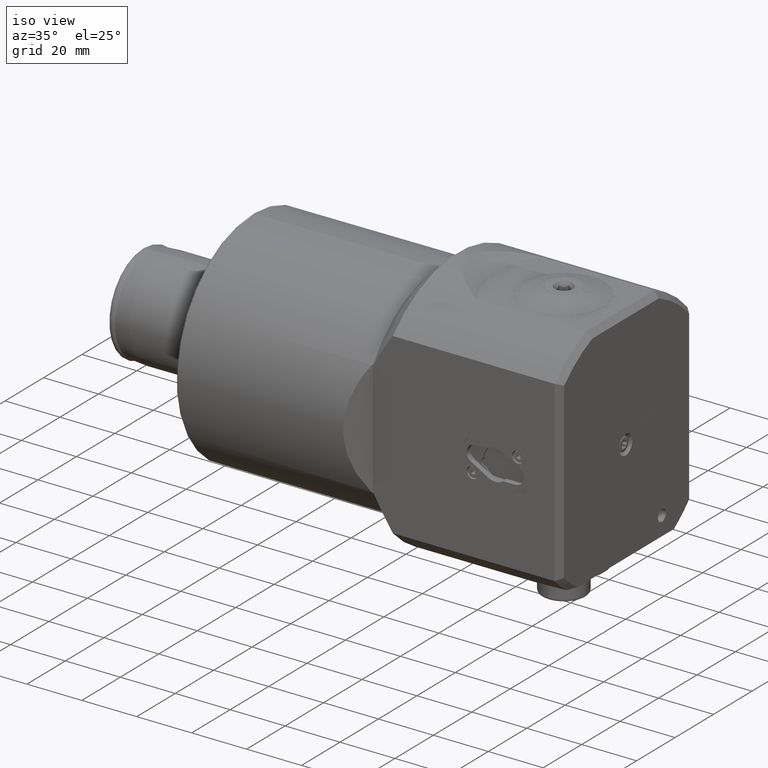
[diagram: clean part render]
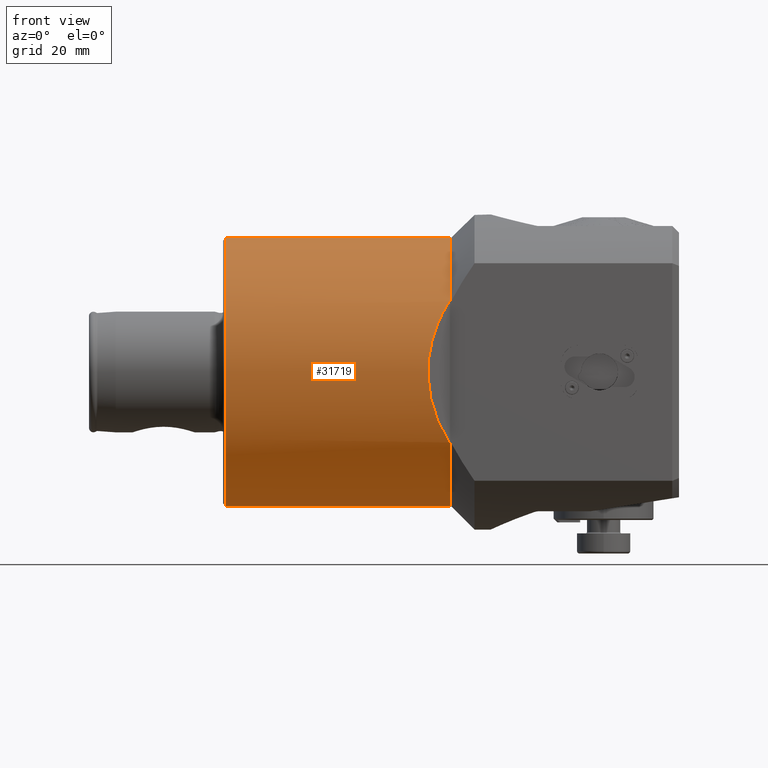
[diagram: tour spotlight — one face highlighted and labeled with its STEP entity id]
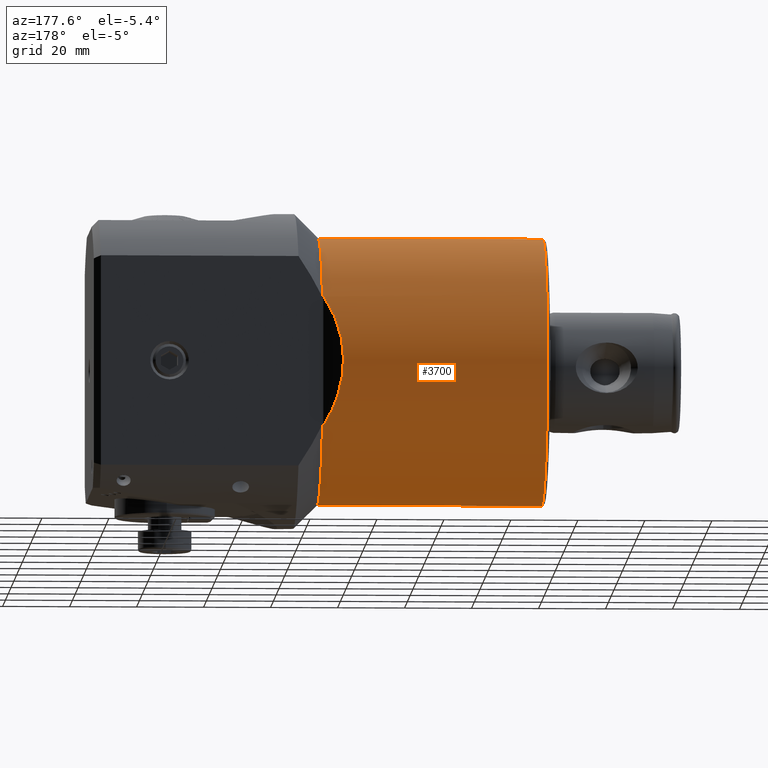
[diagram: tour spotlight — one face highlighted and labeled with its STEP entity id]
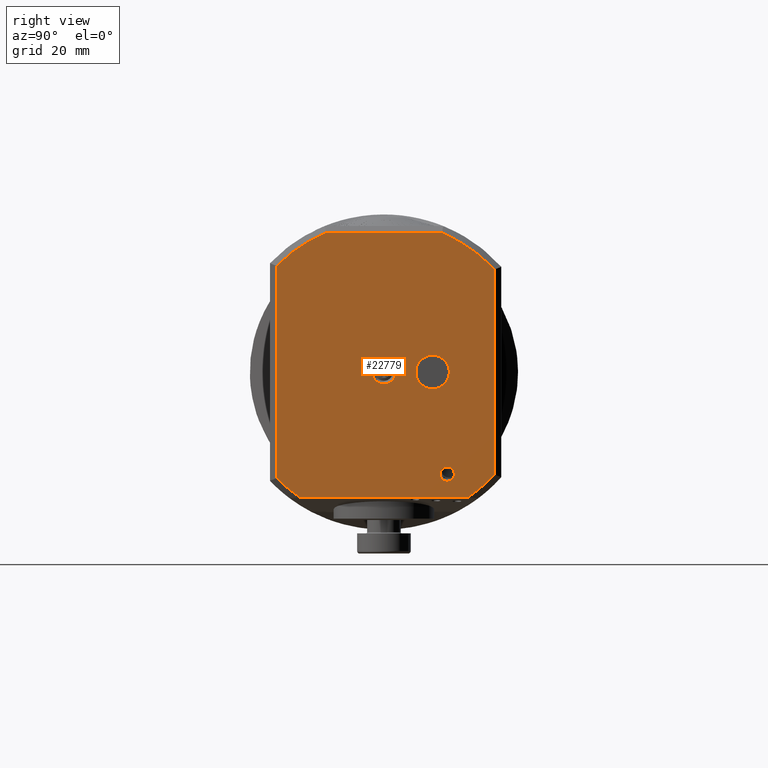
[diagram: tour spotlight — one face highlighted and labeled with its STEP entity id]
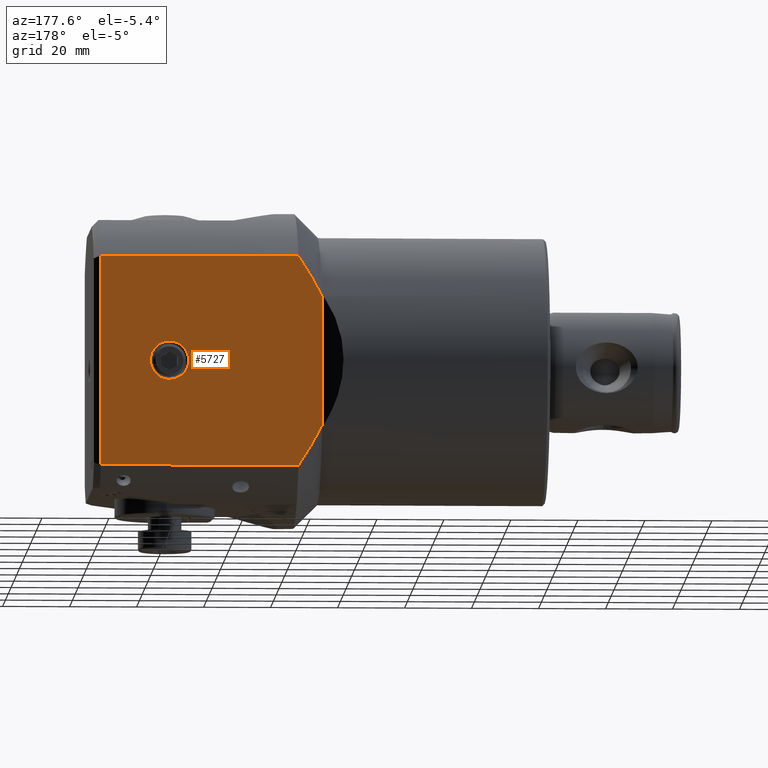
[diagram: tour spotlight — one face highlighted and labeled with its STEP entity id]
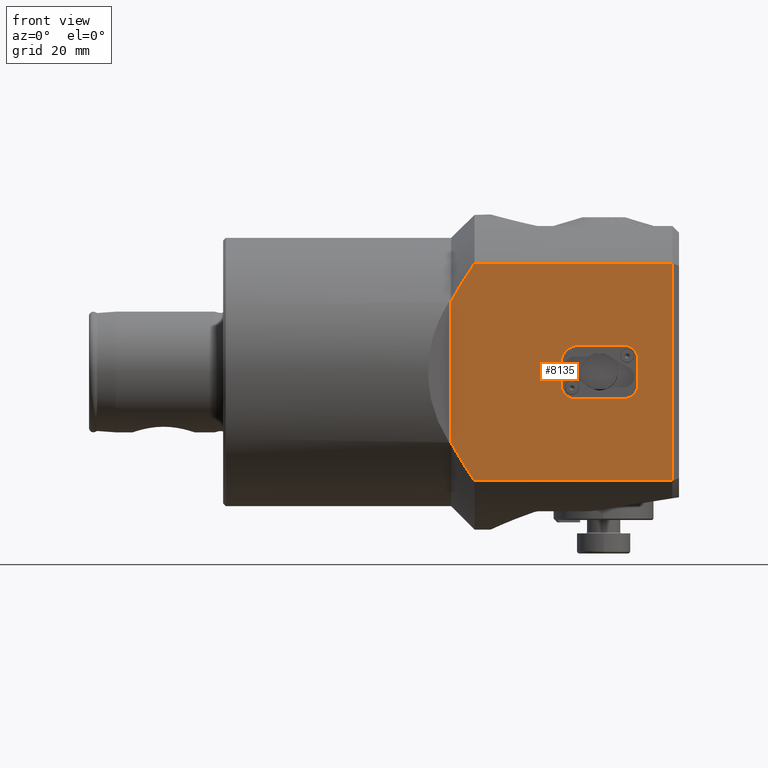
[diagram: tour spotlight — one face highlighted and labeled with its STEP entity id]
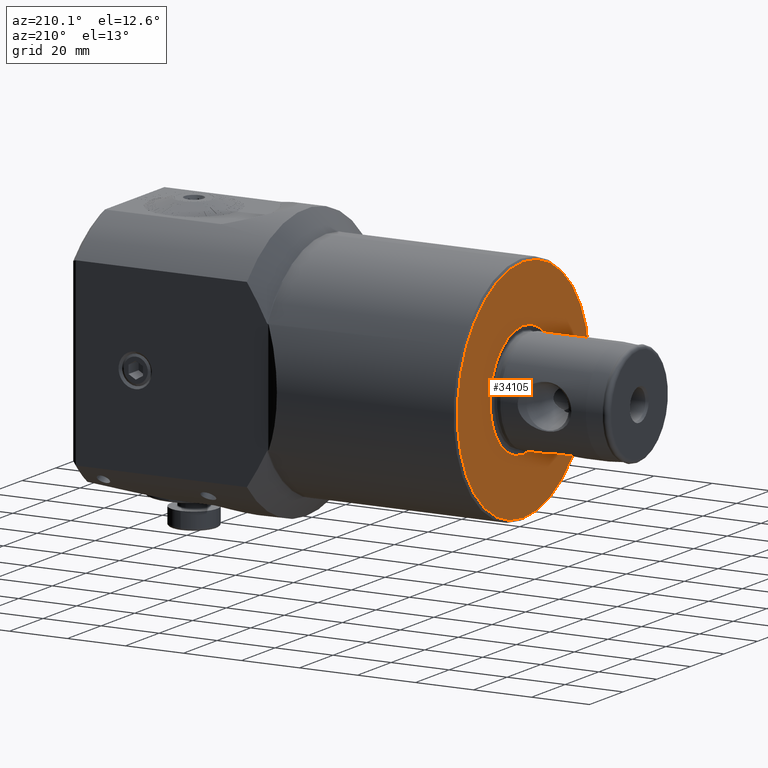
[diagram: tour spotlight — one face highlighted and labeled with its STEP entity id]
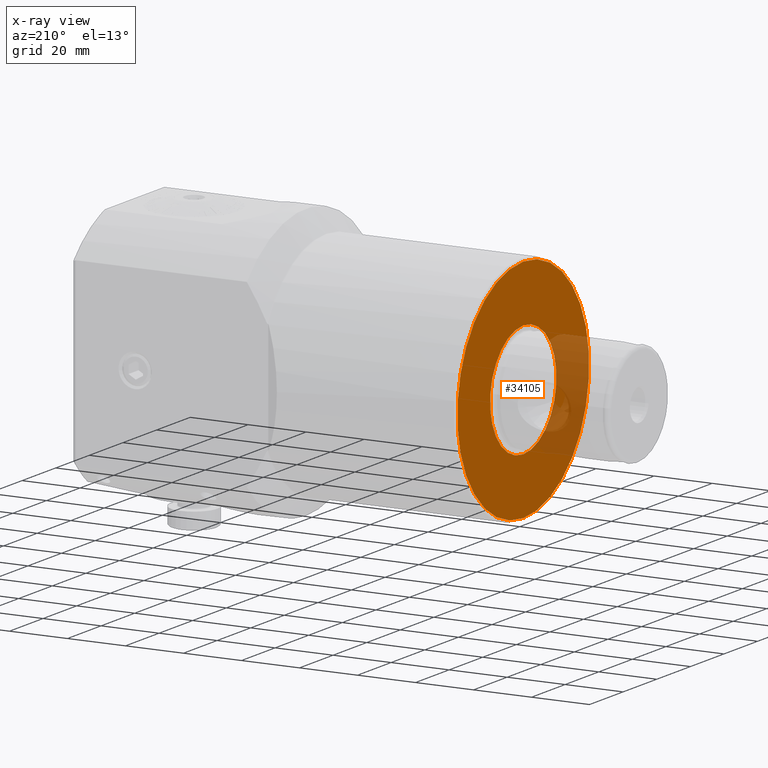
[diagram: x-ray of the same camera — body ghosted, this tour face saturated]
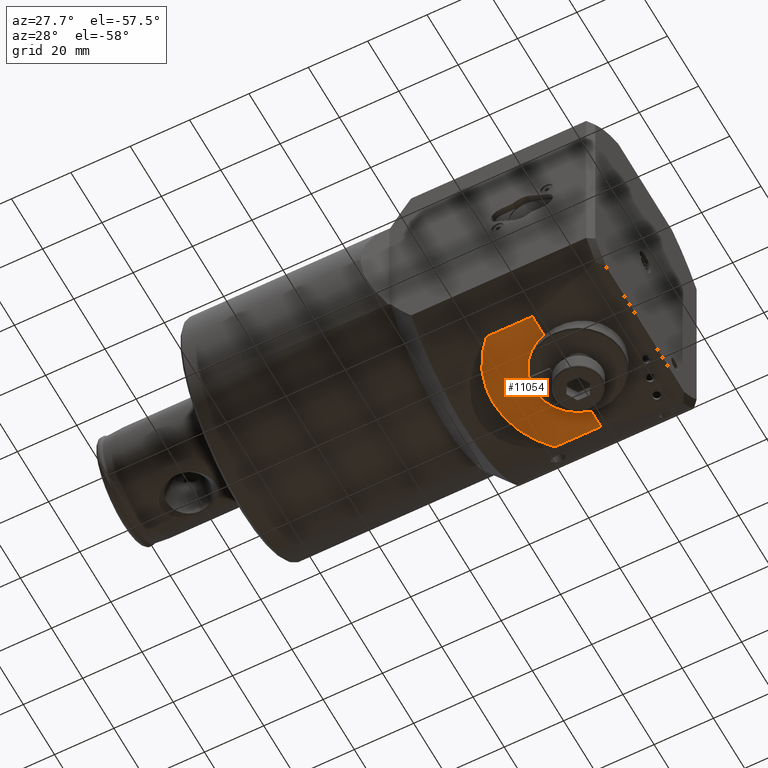
[diagram: tour spotlight — one face highlighted and labeled with its STEP entity id]
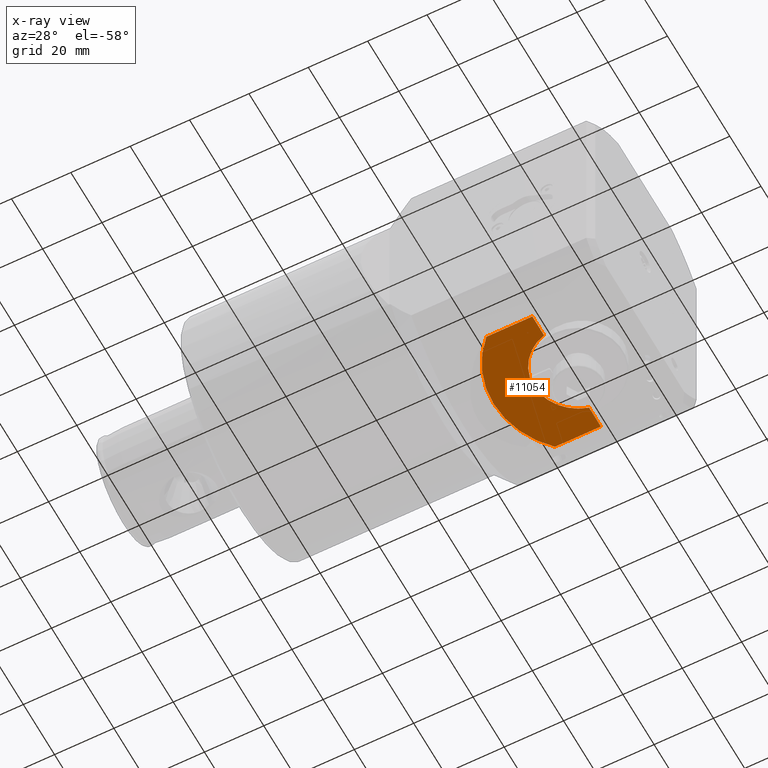
[diagram: x-ray of the same camera — body ghosted, this tour face saturated]
A machine part: a face-by-face anatomy tour. The part has 1006 B-rep faces; the first image is the clean iso view, then the 7 largest visible faces are spotlighted one at a time (largest first), each with its STEP entity span.

Face 1 — front view, entity #31719. In plain terms, the highlighted cylindrical surface (partial cylindrical patch) has radius 40 mm, axis along (-1, -0, -0).
Definition (entity closure, byte-faithful):
#459 = CARTESIAN_POINT ( 'NONE',  ( -135.2000000000000200, -2.979588232294673000E-014, -40.00000000000000000 ) ) ;
#784 = CYLINDRICAL_SURFACE ( 'NONE', #28093, 40.00000000000000700 ) ;
#2121 = EDGE_CURVE ( 'NONE', #4001, #17444, #14070, .T. ) ;
#2385 = ORIENTED_EDGE ( 'NONE', *, *, #2121, .F. ) ;
#2719 = CARTESIAN_POINT ( 'NONE',  ( -68.65494648898815900, -34.16205938127261300, 20.80780550597493300 ) ) ;
#3803 = VERTEX_POINT ( 'NONE', #4761 ) ;
#4001 = VERTEX_POINT ( 'NONE', #459 ) ;
#4761 = CARTESIAN_POINT ( 'NONE',  ( -68.16568542494921700, -34.00000000000001400, 21.07130750570552300 ) ) ;
#4954 = LINE ( 'NONE', #21332, #19301 ) ;
#5513 = AXIS2_PLACEMENT_3D ( 'NONE', #30725, #25513, #22582 ) ;
#6344 = CARTESIAN_POINT ( 'NONE',  ( -176.0000000000000000, -2.979588232294673000E-014, -40.00000000000000700 ) ) ;
#7026 = CARTESIAN_POINT ( 'NONE',  ( -68.16568542494921700, -3.469446951953614200E-014, 40.00000000000000700 ) ) ;
#7616 = EDGE_CURVE ( 'NONE', #23472, #17444, #4954, .T. ) ;
#8084 = EDGE_CURVE ( 'NONE', #3803, #23472, #13259, .T. ) ;
#8108 = CARTESIAN_POINT ( 'NONE',  ( -135.2000000000000200, -3.469446951953614200E-014, 0.0000000000000000000 ) ) ;
#8153 = CARTESIAN_POINT ( 'NONE',  ( -68.40128003120634000, -34.02888103240311300, 21.02478148519661300 ) ) ;
#8448 = EDGE_CURVE ( 'NONE', #32156, #23166, #8927, .T. ) ;
#8737 = CARTESIAN_POINT ( 'NONE',  ( -68.16568542494921700, -3.469446951953614200E-014, 0.0000000000000000000 ) ) ;
#8927 = CIRCLE ( 'NONE', #11398, 40.00000000000000700 ) ;
#9038 =( BOUNDED_CURVE ( )  B_SPLINE_CURVE ( 3, ( #31068, #14645, #14752, #20054 ),
 .UNSPECIFIED., .F., .F. ) 
 B_SPLINE_CURVE_WITH_KNOTS ( ( 4, 4 ),
 ( 5.738738475479662400, 6.827632138879510000 ),
 .UNSPECIFIED. ) 
 CURVE ( )  GEOMETRIC_REPRESENTATION_ITEM ( )  RATIONAL_B_SPLINE_CURVE ( ( 1.000000000000000000, 0.9036092882582350500, 0.9036092882582350500, 1.000000000000000000 ) ) 
 REPRESENTATION_ITEM ( '' )  );
#10185 = CARTESIAN_POINT ( 'NONE',  ( -68.22540814200247900, -34.00000000000000700, -21.07130750570556900 ) ) ;
#10303 = CARTESIAN_POINT ( 'NONE',  ( -68.58373013226953700, -34.11068150384143400, -20.89180344038134500 ) ) ;
#10749 = CARTESIAN_POINT ( 'NONE',  ( -68.71303778911591600, -34.21655729549414800, 20.71779927608551500 ) ) ;
#10859 = CARTESIAN_POINT ( 'NONE',  ( -68.16568542494921700, -34.00000000000001400, 21.07130750570552300 ) ) ;
#11022 = CARTESIAN_POINT ( 'NONE',  ( -68.39624806605510800, -34.03185176484318900, -21.01983878453747300 ) ) ;
#11398 = AXIS2_PLACEMENT_3D ( 'NONE', #8737, #33108, #30372 ) ;
#11791 = EDGE_CURVE ( 'NONE', #32156, #4001, #21503, .T. ) ;
#12328 = ORIENTED_EDGE ( 'NONE', *, *, #32429, .T. ) ;
#13026 = CARTESIAN_POINT ( 'NONE',  ( -68.71303778911591600, -34.21655729549414800, -20.71779927608551500 ) ) ;
#13259 = CIRCLE ( 'NONE', #5513, 40.00000000000000700 ) ;
#13388 = ORIENTED_EDGE ( 'NONE', *, *, #32986, .T. ) ;
#14070 = CIRCLE ( 'NONE', #24403, 40.00000000000000000 ) ;
#14199 = ORIENTED_EDGE ( 'NONE', *, *, #8448, .T. ) ;
#14645 = CARTESIAN_POINT ( 'NONE',  ( -77.15195100762399200, -42.13345995872987300, -7.642609678504023800 ) ) ;
#14752 = CARTESIAN_POINT ( 'NONE',  ( -77.15195100762400700, -42.13345995872987300, 7.642609678504011400 ) ) ;
#15951 = B_SPLINE_CURVE_WITH_KNOTS ( 'NONE', 3,
 ( #31941, #10185, #23650, #11022, #29107, #10303, #29230, #13026 ),
 .UNSPECIFIED., .F., .F.,
 ( 4, 2, 2, 4 ),
 ( 0.001900335878254289600, 0.002078611656613045400, 0.002256887434971801600, 0.002613438991689344800 ),
 .UNSPECIFIED. ) ;
#16553 = VERTEX_POINT ( 'NONE', #28561 ) ;
#17444 = VERTEX_POINT ( 'NONE', #25192 ) ;
#19301 = VECTOR ( 'NONE', #29516, 1000.000000000000000 ) ;
#19787 = CARTESIAN_POINT ( 'NONE',  ( -176.0000000000000000, -3.469446951953614200E-014, 0.0000000000000000000 ) ) ;
#20015 = DIRECTION ( 'NONE',  ( -1.000000000000000000, -0.0000000000000000000, -0.0000000000000000000 ) ) ;
#20054 = CARTESIAN_POINT ( 'NONE',  ( -68.71303778911591600, -34.21655729549414800, 20.71779927608551500 ) ) ;
#21332 = CARTESIAN_POINT ( 'NONE',  ( -176.0000000000000000, -3.469446951953614200E-014, 40.00000000000000700 ) ) ;
#21503 = LINE ( 'NONE', #6344, #22366 ) ;
#22096 = VERTEX_POINT ( 'NONE', #28706 ) ;
#22366 = VECTOR ( 'NONE', #20015, 1000.000000000000000 ) ;
#22582 = DIRECTION ( 'NONE',  ( 0.0000000000000000000, 0.0000000000000000000, 1.000000000000000000 ) ) ;
#23166 = VERTEX_POINT ( 'NONE', #24890 ) ;
#23472 = VERTEX_POINT ( 'NONE', #7026 ) ;
#23650 = CARTESIAN_POINT ( 'NONE',  ( -68.28567292553057700, -34.00702216780511800, -21.05998576330518500 ) ) ;
#24059 = ORIENTED_EDGE ( 'NONE', *, *, #8084, .T. ) ;
#24346 = CARTESIAN_POINT ( 'NONE',  ( -68.58493764483101500, -34.11126430555015100, 20.89085513555181000 ) ) ;
#24398 = EDGE_CURVE ( 'NONE', #22096, #16553, #9038, .T. ) ;
#24403 = AXIS2_PLACEMENT_3D ( 'NONE', #8108, #26771, #29638 ) ;
#24890 = CARTESIAN_POINT ( 'NONE',  ( -68.16568542494921700, -34.00000000000001400, -21.07130750570552300 ) ) ;
#25192 = CARTESIAN_POINT ( 'NONE',  ( -135.2000000000000200, -3.469446951953614200E-014, 40.00000000000000000 ) ) ;
#25513 = DIRECTION ( 'NONE',  ( -1.000000000000000000, -0.0000000000000000000, -0.0000000000000000000 ) ) ;
#25840 = DIRECTION ( 'NONE',  ( 0.0000000000000000000, 0.0000000000000000000, 1.000000000000000000 ) ) ;
#26771 = DIRECTION ( 'NONE',  ( -1.000000000000000000, -0.0000000000000000000, -0.0000000000000000000 ) ) ;
#26827 = EDGE_LOOP ( 'NONE', ( #28432, #14199, #12328, #27596, #13388, #24059, #33523, #2385 ) ) ;
#27047 = CARTESIAN_POINT ( 'NONE',  ( -68.28735252478868700, -34.00000000000001400, 21.07130750570552300 ) ) ;
#27596 = ORIENTED_EDGE ( 'NONE', *, *, #24398, .T. ) ;
#27936 = CARTESIAN_POINT ( 'NONE',  ( -68.16568542494921700, -2.979588232294673000E-014, -40.00000000000000700 ) ) ;
#28093 = AXIS2_PLACEMENT_3D ( 'NONE', #19787, #30808, #25840 ) ;
#28432 = ORIENTED_EDGE ( 'NONE', *, *, #11791, .F. ) ;
#28561 = CARTESIAN_POINT ( 'NONE',  ( -68.71303778911591600, -34.21655729549414800, 20.71779927608551500 ) ) ;
#28706 = CARTESIAN_POINT ( 'NONE',  ( -68.71303778911591600, -34.21655729549414800, -20.71779927608551500 ) ) ;
#29107 = CARTESIAN_POINT ( 'NONE',  ( -68.44738484026706300, -34.04958292861517300, -20.99112701355906900 ) ) ;
#29230 = CARTESIAN_POINT ( 'NONE',  ( -68.65533799600118000, -34.16242667061979400, -20.80719890790799900 ) ) ;
#29516 = DIRECTION ( 'NONE',  ( -1.000000000000000000, -0.0000000000000000000, -0.0000000000000000000 ) ) ;
#29638 = DIRECTION ( 'NONE',  ( 0.0000000000000000000, 0.0000000000000000000, 1.000000000000000000 ) ) ;
#30372 = DIRECTION ( 'NONE',  ( 0.0000000000000000000, 0.0000000000000000000, 1.000000000000000000 ) ) ;
#30400 = FACE_OUTER_BOUND ( 'NONE', #26827, .T. ) ;
#30725 = CARTESIAN_POINT ( 'NONE',  ( -68.16568542494921700, -3.469446951953614200E-014, 0.0000000000000000000 ) ) ;
#30808 = DIRECTION ( 'NONE',  ( -1.000000000000000000, -0.0000000000000000000, -0.0000000000000000000 ) ) ;
#31068 = CARTESIAN_POINT ( 'NONE',  ( -68.71303778911591600, -34.21655729549414800, -20.71779927608551500 ) ) ;
#31226 = B_SPLINE_CURVE_WITH_KNOTS ( 'NONE', 3,
 ( #10749, #2719, #24346, #8153, #27047, #10859 ),
 .UNSPECIFIED., .F., .F.,
 ( 4, 2, 4 ),
 ( 0.005152170253584360300, 0.005506011472979365600, 0.005859852692374371000 ),
 .UNSPECIFIED. ) ;
#31719 = ADVANCED_FACE ( 'NONE', ( #30400 ), #784, .T. ) ;
#31941 = CARTESIAN_POINT ( 'NONE',  ( -68.16568542494921700, -34.00000000000001400, -21.07130750570552300 ) ) ;
#32156 = VERTEX_POINT ( 'NONE', #27936 ) ;
#32429 = EDGE_CURVE ( 'NONE', #23166, #22096, #15951, .T. ) ;
#32986 = EDGE_CURVE ( 'NONE', #16553, #3803, #31226, .T. ) ;
#33108 = DIRECTION ( 'NONE',  ( -1.000000000000000000, -0.0000000000000000000, -0.0000000000000000000 ) ) ;
#33523 = ORIENTED_EDGE ( 'NONE', *, *, #7616, .T. ) ;

Face 2 — auxiliary view, entity #3700. In plain terms, the highlighted cylindrical surface (partial cylindrical patch) has radius 40 mm, axis along (-1, -0, -0).
Definition (entity closure, byte-faithful):
#260 = CARTESIAN_POINT ( 'NONE',  ( -68.16568542494923100, 35.00000000000001400, -19.36491673103701000 ) ) ;
#380 = CARTESIAN_POINT ( 'NONE',  ( -68.28132486105202800, 35.00655953996988500, -19.35307064945804000 ) ) ;
#459 = CARTESIAN_POINT ( 'NONE',  ( -135.2000000000000200, -2.979588232294673000E-014, -40.00000000000000000 ) ) ;
#498 = CARTESIAN_POINT ( 'NONE',  ( -68.22327115433958500, 35.00000000000002100, -19.36491673103704200 ) ) ;
#618 = CARTESIAN_POINT ( 'NONE',  ( -68.38697983238405700, 35.02931911400825300, -19.31184498688169500 ) ) ;
#1489 = CARTESIAN_POINT ( 'NONE',  ( -76.25849145588175300, 41.74114084938683800, -6.887738850265104200 ) ) ;
#1608 = CARTESIAN_POINT ( 'NONE',  ( -68.68899097443299700, 35.19489562728447400, 19.00840134741869400 ) ) ;
#1749 = CIRCLE ( 'NONE', #34597, 40.00000000000000700 ) ;
#1804 = DIRECTION ( 'NONE',  ( 0.0000000000000000000, 0.0000000000000000000, 1.000000000000000000 ) ) ;
#2257 = AXIS2_PLACEMENT_3D ( 'NONE', #10417, #7238, #1804 ) ;
#2667 = CARTESIAN_POINT ( 'NONE',  ( -68.38812159457512500, 35.02960469964811800, 19.31132738409710500 ) ) ;
#2781 = CARTESIAN_POINT ( 'NONE',  ( -68.68899097443299700, 35.19489562728447400, -19.00840134741871200 ) ) ;
#3238 = DIRECTION ( 'NONE',  ( 0.0000000000000000000, 0.0000000000000000000, 1.000000000000000000 ) ) ;
#3382 = EDGE_CURVE ( 'NONE', #10861, #18166, #33363, .T. ) ;
#3700 = ADVANCED_FACE ( 'NONE', ( #26680 ), #33038, .T. ) ;
#4001 = VERTEX_POINT ( 'NONE', #459 ) ;
#4346 = CARTESIAN_POINT ( 'NONE',  ( -76.25849145588175300, 41.74114084938684500, 6.887738850265075800 ) ) ;
#4430 = DIRECTION ( 'NONE',  ( -1.000000000000000000, -0.0000000000000000000, -0.0000000000000000000 ) ) ;
#4686 = ORIENTED_EDGE ( 'NONE', *, *, #15251, .T. ) ;
#4954 = LINE ( 'NONE', #21332, #19301 ) ;
#4993 = CIRCLE ( 'NONE', #21356, 40.00000000000000000 ) ;
#5464 = CARTESIAN_POINT ( 'NONE',  ( -68.63326604857356000, 35.14670367187691400, 19.09763088385598800 ) ) ;
#5728 = CARTESIAN_POINT ( 'NONE',  ( -68.43563771163495300, 35.04543617213172300, 19.28260587969533500 ) ) ;
#6344 = CARTESIAN_POINT ( 'NONE',  ( -176.0000000000000000, -2.979588232294673000E-014, -40.00000000000000700 ) ) ;
#7026 = CARTESIAN_POINT ( 'NONE',  ( -68.16568542494921700, -3.469446951953614200E-014, 40.00000000000000700 ) ) ;
#7238 = DIRECTION ( 'NONE',  ( -1.000000000000000000, -0.0000000000000000000, -0.0000000000000000000 ) ) ;
#7616 = EDGE_CURVE ( 'NONE', #23472, #17444, #4954, .T. ) ;
#8319 = CARTESIAN_POINT ( 'NONE',  ( -68.56485815072696300, 35.10040145081542600, -19.18248205635142500 ) ) ;
#10417 = CARTESIAN_POINT ( 'NONE',  ( -176.0000000000000000, -3.469446951953614200E-014, 0.0000000000000000000 ) ) ;
#10647 = CARTESIAN_POINT ( 'NONE',  ( -68.16568542494923100, 35.00000000000001400, 19.36491673103702400 ) ) ;
#10861 = VERTEX_POINT ( 'NONE', #24447 ) ;
#10925 = CARTESIAN_POINT ( 'NONE',  ( -68.63319407104073400, 35.14664142435814400, -19.09774613788958700 ) ) ;
#11128 = CARTESIAN_POINT ( 'NONE',  ( -68.68899097443299700, 35.19489562728447400, 19.00840134741869400 ) ) ;
#11791 = EDGE_CURVE ( 'NONE', #32156, #4001, #21503, .T. ) ;
#12255 = EDGE_CURVE ( 'NONE', #21789, #22527, #16504, .T. ) ;
#12462 = ORIENTED_EDGE ( 'NONE', *, *, #7616, .F. ) ;
#12511 = DIRECTION ( 'NONE',  ( -1.000000000000000000, -0.0000000000000000000, -0.0000000000000000000 ) ) ;
#15251 = EDGE_CURVE ( 'NONE', #23472, #21789, #31922, .T. ) ;
#16475 = EDGE_CURVE ( 'NONE', #22527, #10861, #32244, .T. ) ;
#16504 = B_SPLINE_CURVE_WITH_KNOTS ( 'NONE', 3,
 ( #32459, #24528, #32695, #2667, #5728, #34570, #5464, #11128 ),
 .UNSPECIFIED., .F., .F.,
 ( 4, 2, 2, 4 ),
 ( 0.002024114931907352100, 0.002193500458901803400, 0.002362885985896254700, 0.002701657039885163400 ),
 .UNSPECIFIED. ) ;
#17091 = ORIENTED_EDGE ( 'NONE', *, *, #12255, .T. ) ;
#17444 = VERTEX_POINT ( 'NONE', #25192 ) ;
#18057 = DIRECTION ( 'NONE',  ( 0.0000000000000000000, 0.0000000000000000000, 1.000000000000000000 ) ) ;
#18166 = VERTEX_POINT ( 'NONE', #27986 ) ;
#19173 = DIRECTION ( 'NONE',  ( -1.000000000000000000, -0.0000000000000000000, -0.0000000000000000000 ) ) ;
#19301 = VECTOR ( 'NONE', #29516, 1000.000000000000000 ) ;
#20015 = DIRECTION ( 'NONE',  ( -1.000000000000000000, -0.0000000000000000000, -0.0000000000000000000 ) ) ;
#21332 = CARTESIAN_POINT ( 'NONE',  ( -176.0000000000000000, -3.469446951953614200E-014, 40.00000000000000700 ) ) ;
#21356 = AXIS2_PLACEMENT_3D ( 'NONE', #27452, #19173, #3238 ) ;
#21503 = LINE ( 'NONE', #6344, #22366 ) ;
#21665 = ORIENTED_EDGE ( 'NONE', *, *, #11791, .T. ) ;
#21723 = ORIENTED_EDGE ( 'NONE', *, *, #3382, .T. ) ;
#21789 = VERTEX_POINT ( 'NONE', #10647 ) ;
#22366 = VECTOR ( 'NONE', #20015, 1000.000000000000000 ) ;
#22527 = VERTEX_POINT ( 'NONE', #24886 ) ;
#23227 = CARTESIAN_POINT ( 'NONE',  ( -68.68899097443299700, 35.19489562728447400, -19.00840134741871200 ) ) ;
#23472 = VERTEX_POINT ( 'NONE', #7026 ) ;
#23730 = CARTESIAN_POINT ( 'NONE',  ( -68.16568542494921700, -3.469446951953614200E-014, 0.0000000000000000000 ) ) ;
#23997 = ORIENTED_EDGE ( 'NONE', *, *, #16475, .T. ) ;
#24447 = CARTESIAN_POINT ( 'NONE',  ( -68.68899097443299700, 35.19489562728447400, -19.00840134741871200 ) ) ;
#24528 = CARTESIAN_POINT ( 'NONE',  ( -68.22357377090057200, 35.00000000000001400, 19.36491673103702700 ) ) ;
#24551 = EDGE_LOOP ( 'NONE', ( #29383, #21665, #25143, #12462, #4686, #17091, #23997, #21723 ) ) ;
#24858 = CARTESIAN_POINT ( 'NONE',  ( -68.43552851491730800, 35.04542796529889900, -19.28261986068558200 ) ) ;
#24886 = CARTESIAN_POINT ( 'NONE',  ( -68.68899097443299700, 35.19489562728447400, 19.00840134741869400 ) ) ;
#25143 = ORIENTED_EDGE ( 'NONE', *, *, #25313, .F. ) ;
#25192 = CARTESIAN_POINT ( 'NONE',  ( -135.2000000000000200, -3.469446951953614200E-014, 40.00000000000000000 ) ) ;
#25313 = EDGE_CURVE ( 'NONE', #17444, #4001, #4993, .T. ) ;
#26680 = FACE_OUTER_BOUND ( 'NONE', #24551, .T. ) ;
#27452 = CARTESIAN_POINT ( 'NONE',  ( -135.2000000000000200, -3.469446951953614200E-014, 0.0000000000000000000 ) ) ;
#27936 = CARTESIAN_POINT ( 'NONE',  ( -68.16568542494921700, -2.979588232294673000E-014, -40.00000000000000700 ) ) ;
#27986 = CARTESIAN_POINT ( 'NONE',  ( -68.16568542494923100, 35.00000000000001400, -19.36491673103701000 ) ) ;
#28621 = EDGE_CURVE ( 'NONE', #18166, #32156, #1749, .T. ) ;
#29383 = ORIENTED_EDGE ( 'NONE', *, *, #28621, .T. ) ;
#29516 = DIRECTION ( 'NONE',  ( -1.000000000000000000, -0.0000000000000000000, -0.0000000000000000000 ) ) ;
#29910 = AXIS2_PLACEMENT_3D ( 'NONE', #31126, #4430, #33862 ) ;
#31126 = CARTESIAN_POINT ( 'NONE',  ( -68.16568542494921700, -3.469446951953614200E-014, 0.0000000000000000000 ) ) ;
#31922 = CIRCLE ( 'NONE', #29910, 40.00000000000000700 ) ;
#32156 = VERTEX_POINT ( 'NONE', #27936 ) ;
#32244 =( BOUNDED_CURVE ( )  B_SPLINE_CURVE ( 3, ( #1608, #4346, #1489, #23227 ),
 .UNSPECIFIED., .F., .F. ) 
 B_SPLINE_CURVE_WITH_KNOTS ( ( 4, 4 ),
 ( 5.787982581588221500, 6.778388032770951800 ),
 .UNSPECIFIED. ) 
 CURVE ( )  GEOMETRIC_REPRESENTATION_ITEM ( )  RATIONAL_B_SPLINE_CURVE ( ( 1.000000000000000000, 0.9199149271214086500, 0.9199149271214086500, 1.000000000000000000 ) ) 
 REPRESENTATION_ITEM ( '' )  );
#32459 = CARTESIAN_POINT ( 'NONE',  ( -68.16568542494923100, 35.00000000000001400, 19.36491673103702400 ) ) ;
#32695 = CARTESIAN_POINT ( 'NONE',  ( -68.28128620695423500, 35.00651198650393800, 19.35315708839632600 ) ) ;
#33038 = CYLINDRICAL_SURFACE ( 'NONE', #2257, 40.00000000000000700 ) ;
#33363 = B_SPLINE_CURVE_WITH_KNOTS ( 'NONE', 3,
 ( #2781, #10925, #8319, #24858, #618, #380, #498, #260 ),
 .UNSPECIFIED., .F., .F.,
 ( 4, 2, 2, 4 ),
 ( 0.005664162658558188400, 0.006004637909596737500, 0.006174875535116008600, 0.006345113160635279700 ),
 .UNSPECIFIED. ) ;
#33862 = DIRECTION ( 'NONE',  ( 0.0000000000000000000, 0.0000000000000000000, 1.000000000000000000 ) ) ;
#34570 = CARTESIAN_POINT ( 'NONE',  ( -68.56629066901688000, 35.10108751042651000, 19.18123039880024900 ) ) ;
#34597 = AXIS2_PLACEMENT_3D ( 'NONE', #23730, #12511, #18057 ) ;

Face 3 — right view, entity #22779. In plain terms, the highlighted planar face has unit normal (1, 0, 0).
Definition (entity closure, byte-faithful):
#757 = VERTEX_POINT ( 'NONE', #11387 ) ;
#962 = CARTESIAN_POINT ( 'NONE',  ( 0.0000000000000000000, 18.88726684291538400, -28.35876558637063400 ) ) ;
#1080 = VECTOR ( 'NONE', #20782, 1000.000000000000000 ) ;
#1588 = PLANE ( 'NONE',  #30256 ) ;
#1820 = VERTEX_POINT ( 'NONE', #5300 ) ;
#1914 = EDGE_CURVE ( 'NONE', #11460, #24187, #8555, .T. ) ;
#2058 = DIRECTION ( 'NONE',  ( -0.0000000000000000000, 0.0000000000000000000, -1.000000000000000000 ) ) ;
#2087 = CARTESIAN_POINT ( 'NONE',  ( 0.0000000000000000000, 0.0000000000000000000, 0.0000000000000000000 ) ) ;
#2103 = CIRCLE ( 'NONE', #22711, 4.999999999999995600 ) ;
#2202 = VERTEX_POINT ( 'NONE', #33037 ) ;
#2521 = CARTESIAN_POINT ( 'NONE',  ( 0.0000000000000000000, -32.00000000000002800, -31.63858403911270400 ) ) ;
#2624 = FACE_OUTER_BOUND ( 'NONE', #14875, .T. ) ;
#2742 = EDGE_CURVE ( 'NONE', #18296, #15017, #29695, .T. ) ;
#3213 = DIRECTION ( 'NONE',  ( 0.0000000000000000000, 1.000000000000000000, 0.0000000000000000000 ) ) ;
#3472 = ORIENTED_EDGE ( 'NONE', *, *, #31574, .T. ) ;
#3981 = DIRECTION ( 'NONE',  ( 0.0000000000000000000, 0.0000000000000000000, -1.000000000000000000 ) ) ;
#4160 = CARTESIAN_POINT ( 'NONE',  ( 0.0000000000000000000, 18.87354396703282300, -32.57196696821346600 ) ) ;
#4426 = CARTESIAN_POINT ( 'NONE',  ( 0.0000000000000000000, 33.00000000000000700, 0.0000000000000000000 ) ) ;
#5159 = ORIENTED_EDGE ( 'NONE', *, *, #1914, .T. ) ;
#5300 = CARTESIAN_POINT ( 'NONE',  ( 0.0000000000000000000, 18.88726684291538400, -28.35876558637063400 ) ) ;
#5485 = CARTESIAN_POINT ( 'NONE',  ( 0.0000000000000000000, 0.0000000000000000000, 0.0000000000000000000 ) ) ;
#5935 = DIRECTION ( 'NONE',  ( 0.0000000000000000000, -1.000000000000000000, 0.0000000000000000000 ) ) ;
#6284 = CIRCLE ( 'NONE', #16112, 3.543375672974040700 ) ;
#6295 = VECTOR ( 'NONE', #27805, 1000.000000000000000 ) ;
#6345 = CIRCLE ( 'NONE', #32457, 3.543375672974040700 ) ;
#6395 = VERTEX_POINT ( 'NONE', #12492 ) ;
#6980 = CARTESIAN_POINT ( 'NONE',  ( 0.0000000000000000000, 14.50000000000000000, -4.999999999999995600 ) ) ;
#7151 = AXIS2_PLACEMENT_3D ( 'NONE', #2087, #18154, #15929 ) ;
#7423 = EDGE_LOOP ( 'NONE', ( #34307, #3472 ) ) ;
#7596 = DIRECTION ( 'NONE',  ( 0.0000000000000000000, 0.0000000000000000000, -1.000000000000000000 ) ) ;
#7754 = VERTEX_POINT ( 'NONE', #29226 ) ;
#8555 = CIRCLE ( 'NONE', #22600, 44.99999999999999300 ) ;
#8587 = CARTESIAN_POINT ( 'NONE',  ( 0.0000000000000000000, 0.0000000000000000000, 3.587491379859671100E-015 ) ) ;
#8686 = ORIENTED_EDGE ( 'NONE', *, *, #2742, .T. ) ;
#8870 = CARTESIAN_POINT ( 'NONE',  ( 0.0000000000000000000, 14.50000000000000000, 0.0000000000000000000 ) ) ;
#9235 =( BOUNDED_CURVE ( )  B_SPLINE_CURVE ( 3, ( #962, #30741, #14550, #4160 ),
 .UNSPECIFIED., .F., .T. ) 
 B_SPLINE_CURVE_WITH_KNOTS ( ( 4, 4 ),
 ( 2.663257530364793200, 5.804850183954585000 ),
 .UNSPECIFIED. ) 
 CURVE ( )  GEOMETRIC_REPRESENTATION_ITEM ( )  RATIONAL_B_SPLINE_CURVE ( ( 1.000000000000000000, 0.3333333333333338100, 0.3333333333333338100, 1.000000000000000000 ) ) 
 REPRESENTATION_ITEM ( '' )  );
#9377 = VECTOR ( 'NONE', #5935, 1000.000000000000000 ) ;
#9557 = LINE ( 'NONE', #31206, #1080 ) ;
#10070 = EDGE_CURVE ( 'NONE', #18296, #24187, #25797, .T. ) ;
#10267 = VERTEX_POINT ( 'NONE', #2521 ) ;
#10301 = CARTESIAN_POINT ( 'NONE',  ( 0.0000000000000000000, 0.0000000000000000000, 3.587491379859671100E-015 ) ) ;
#10420 = DIRECTION ( 'NONE',  ( 0.0000000000000000000, 0.0000000000000000000, 1.000000000000000000 ) ) ;
#11239 = DIRECTION ( 'NONE',  ( 0.0000000000000000000, 0.0000000000000000000, -1.000000000000000000 ) ) ;
#11319 = DIRECTION ( 'NONE',  ( 0.0000000000000000000, 0.0000000000000000000, 1.000000000000000000 ) ) ;
#11387 = CARTESIAN_POINT ( 'NONE',  ( 0.0000000000000000000, -25.09079073794949700, -37.35575216943738800 ) ) ;
#11460 = VERTEX_POINT ( 'NONE', #28018 ) ;
#11859 =( BOUNDED_CURVE ( )  B_SPLINE_CURVE ( 3, ( #25399, #33106, #33221, #30828 ),
 .UNSPECIFIED., .F., .F. ) 
 B_SPLINE_CURVE_WITH_KNOTS ( ( 4, 4 ),
 ( 5.804850183954585000, 8.946442837544379900 ),
 .UNSPECIFIED. ) 
 CURVE ( )  GEOMETRIC_REPRESENTATION_ITEM ( )  RATIONAL_B_SPLINE_CURVE ( ( 1.000000000000000000, 0.3333333333333327600, 0.3333333333333327600, 1.000000000000000000 ) ) 
 REPRESENTATION_ITEM ( '' )  );
#12492 = CARTESIAN_POINT ( 'NONE',  ( 0.0000000000000000000, 0.0000000000000000000, -3.543375672974037100 ) ) ;
#12532 = CARTESIAN_POINT ( 'NONE',  ( 0.0000000000000000000, 33.00000000000000700, 30.59411708155668600 ) ) ;
#13174 = EDGE_CURVE ( 'NONE', #10267, #757, #32881, .T. ) ;
#13323 = CARTESIAN_POINT ( 'NONE',  ( 0.0000000000000000000, 17.27997395831367200, 41.55000000000000400 ) ) ;
#13972 = ORIENTED_EDGE ( 'NONE', *, *, #17454, .F. ) ;
#14502 = CARTESIAN_POINT ( 'NONE',  ( 0.0000000000000000000, 18.87354396703282300, -32.57196696821346600 ) ) ;
#14550 = CARTESIAN_POINT ( 'NONE',  ( 0.0000000000000000000, 23.07710310573699200, -32.57196696821346600 ) ) ;
#14733 = VERTEX_POINT ( 'NONE', #14502 ) ;
#14875 = EDGE_LOOP ( 'NONE', ( #8686, #16262, #20986, #32575, #34786, #33028, #5159, #25899 ) ) ;
#15017 = VERTEX_POINT ( 'NONE', #13323 ) ;
#15827 = VECTOR ( 'NONE', #3213, 1000.000000000000000 ) ;
#15898 = DIRECTION ( 'NONE',  ( 1.000000000000000000, -0.0000000000000000000, -0.0000000000000000000 ) ) ;
#15899 = EDGE_CURVE ( 'NONE', #757, #11460, #28079, .T. ) ;
#15929 = DIRECTION ( 'NONE',  ( 0.0000000000000000000, 0.0000000000000000000, -1.000000000000000000 ) ) ;
#16112 = AXIS2_PLACEMENT_3D ( 'NONE', #8587, #24682, #11319 ) ;
#16262 = ORIENTED_EDGE ( 'NONE', *, *, #17344, .T. ) ;
#16599 = LINE ( 'NONE', #34927, #9377 ) ;
#17344 = EDGE_CURVE ( 'NONE', #15017, #18984, #16599, .T. ) ;
#17454 = EDGE_CURVE ( 'NONE', #19184, #2202, #19498, .T. ) ;
#17687 = EDGE_CURVE ( 'NONE', #22138, #10267, #9557, .T. ) ;
#18154 = DIRECTION ( 'NONE',  ( 1.000000000000000000, -0.0000000000000000000, -0.0000000000000000000 ) ) ;
#18296 = VERTEX_POINT ( 'NONE', #12532 ) ;
#18680 = FACE_BOUND ( 'NONE', #7423, .T. ) ;
#18683 = CARTESIAN_POINT ( 'NONE',  ( 0.0000000000000000000, 14.50000000000000000, 0.0000000000000000000 ) ) ;
#18984 = VERTEX_POINT ( 'NONE', #19375 ) ;
#19088 = FACE_BOUND ( 'NONE', #32979, .T. ) ;
#19149 = CARTESIAN_POINT ( 'NONE',  ( 0.0000000000000000000, 0.0000000000000000000, 0.0000000000000000000 ) ) ;
#19184 = VERTEX_POINT ( 'NONE', #6980 ) ;
#19251 = DIRECTION ( 'NONE',  ( 1.000000000000000000, -0.0000000000000000000, -0.0000000000000000000 ) ) ;
#19375 = CARTESIAN_POINT ( 'NONE',  ( 0.0000000000000000000, -17.27997395831367200, 41.55000000000000400 ) ) ;
#19498 = CIRCLE ( 'NONE', #20647, 4.999999999999995600 ) ;
#20647 = AXIS2_PLACEMENT_3D ( 'NONE', #8870, #25424, #22599 ) ;
#20782 = DIRECTION ( 'NONE',  ( 0.0000000000000000000, 0.0000000000000000000, -1.000000000000000000 ) ) ;
#20842 = EDGE_CURVE ( 'NONE', #18984, #22138, #34461, .T. ) ;
#20986 = ORIENTED_EDGE ( 'NONE', *, *, #20842, .T. ) ;
#21526 = CARTESIAN_POINT ( 'NONE',  ( 0.0000000000000000000, 33.00000000000000700, -30.59411708155668600 ) ) ;
#21947 = EDGE_CURVE ( 'NONE', #14733, #1820, #11859, .T. ) ;
#22138 = VERTEX_POINT ( 'NONE', #22796 ) ;
#22599 = DIRECTION ( 'NONE',  ( 0.0000000000000000000, 0.0000000000000000000, -1.000000000000000000 ) ) ;
#22600 = AXIS2_PLACEMENT_3D ( 'NONE', #27841, #25355, #3981 ) ;
#22711 = AXIS2_PLACEMENT_3D ( 'NONE', #18683, #29476, #7596 ) ;
#22779 = ADVANCED_FACE ( 'NONE', ( #27570, #18680, #19088, #2624 ), #1588, .T. ) ;
#22796 = CARTESIAN_POINT ( 'NONE',  ( 0.0000000000000000000, -32.00000000000002800, 31.63858403911269700 ) ) ;
#23810 = CARTESIAN_POINT ( 'NONE',  ( 0.0000000000000000000, 0.0000000000000000000, 0.0000000000000000000 ) ) ;
#23982 = EDGE_LOOP ( 'NONE', ( #31007, #30034 ) ) ;
#24020 = EDGE_CURVE ( 'NONE', #2202, #19184, #2103, .T. ) ;
#24024 = EDGE_CURVE ( 'NONE', #6395, #7754, #6345, .T. ) ;
#24187 = VERTEX_POINT ( 'NONE', #21526 ) ;
#24201 = AXIS2_PLACEMENT_3D ( 'NONE', #19149, #19251, #11239 ) ;
#24682 = DIRECTION ( 'NONE',  ( -1.000000000000000000, -0.0000000000000000000, -0.0000000000000000000 ) ) ;
#25355 = DIRECTION ( 'NONE',  ( 1.000000000000000000, -0.0000000000000000000, -0.0000000000000000000 ) ) ;
#25399 = CARTESIAN_POINT ( 'NONE',  ( 0.0000000000000000000, 18.87354396703282300, -32.57196696821346600 ) ) ;
#25424 = DIRECTION ( 'NONE',  ( 1.000000000000000000, -0.0000000000000000000, -0.0000000000000000000 ) ) ;
#25797 = LINE ( 'NONE', #4426, #6295 ) ;
#25899 = ORIENTED_EDGE ( 'NONE', *, *, #10070, .F. ) ;
#26514 = DIRECTION ( 'NONE',  ( 1.000000000000000000, 0.0000000000000000000, -0.0000000000000000000 ) ) ;
#26610 = DIRECTION ( 'NONE',  ( -1.000000000000000000, -0.0000000000000000000, -0.0000000000000000000 ) ) ;
#27570 = FACE_BOUND ( 'NONE', #23982, .T. ) ;
#27805 = DIRECTION ( 'NONE',  ( 0.0000000000000000000, 0.0000000000000000000, -1.000000000000000000 ) ) ;
#27841 = CARTESIAN_POINT ( 'NONE',  ( 0.0000000000000000000, 0.0000000000000000000, 0.0000000000000000000 ) ) ;
#28018 = CARTESIAN_POINT ( 'NONE',  ( 0.0000000000000000000, 25.09079073794949700, -37.35575216943738800 ) ) ;
#28079 = LINE ( 'NONE', #30625, #15827 ) ;
#29226 = CARTESIAN_POINT ( 'NONE',  ( 0.0000000000000000000, 4.339383676084256800E-016, 3.543375672974044200 ) ) ;
#29476 = DIRECTION ( 'NONE',  ( 1.000000000000000000, -0.0000000000000000000, -0.0000000000000000000 ) ) ;
#29695 = CIRCLE ( 'NONE', #24201, 44.99999999999999300 ) ;
#30034 = ORIENTED_EDGE ( 'NONE', *, *, #32678, .T. ) ;
#30256 = AXIS2_PLACEMENT_3D ( 'NONE', #23810, #26514, #2058 ) ;
#30625 = CARTESIAN_POINT ( 'NONE',  ( 0.0000000000000000000, 0.0000000000000000000, -37.35575216943740200 ) ) ;
#30741 = CARTESIAN_POINT ( 'NONE',  ( 0.0000000000000000000, 23.09082598161954500, -28.35876558637064400 ) ) ;
#30828 = CARTESIAN_POINT ( 'NONE',  ( 0.0000000000000000000, 18.88726684291538400, -28.35876558637063400 ) ) ;
#31007 = ORIENTED_EDGE ( 'NONE', *, *, #21947, .T. ) ;
#31206 = CARTESIAN_POINT ( 'NONE',  ( 0.0000000000000000000, -32.00000000000002800, 0.0000000000000000000 ) ) ;
#31574 = EDGE_CURVE ( 'NONE', #7754, #6395, #6284, .T. ) ;
#32206 = DIRECTION ( 'NONE',  ( 0.0000000000000000000, 0.0000000000000000000, -1.000000000000000000 ) ) ;
#32457 = AXIS2_PLACEMENT_3D ( 'NONE', #10301, #26610, #10420 ) ;
#32575 = ORIENTED_EDGE ( 'NONE', *, *, #17687, .T. ) ;
#32678 = EDGE_CURVE ( 'NONE', #1820, #14733, #9235, .T. ) ;
#32881 = CIRCLE ( 'NONE', #35118, 44.99999999999999300 ) ;
#32979 = EDGE_LOOP ( 'NONE', ( #13972, #35071 ) ) ;
#33028 = ORIENTED_EDGE ( 'NONE', *, *, #15899, .T. ) ;
#33037 = CARTESIAN_POINT ( 'NONE',  ( 0.0000000000000000000, 14.50000000000000000, 4.999999999999995600 ) ) ;
#33106 = CARTESIAN_POINT ( 'NONE',  ( 0.0000000000000000000, 14.66998482832865000, -32.57196696821346600 ) ) ;
#33221 = CARTESIAN_POINT ( 'NONE',  ( 0.0000000000000000000, 14.68370770421120500, -28.35876558637063400 ) ) ;
#34307 = ORIENTED_EDGE ( 'NONE', *, *, #24024, .T. ) ;
#34461 = CIRCLE ( 'NONE', #7151, 44.99999999999999300 ) ;
#34786 = ORIENTED_EDGE ( 'NONE', *, *, #13174, .T. ) ;
#34927 = CARTESIAN_POINT ( 'NONE',  ( 0.0000000000000000000, 0.0000000000000000000, 41.55000000000000400 ) ) ;
#35071 = ORIENTED_EDGE ( 'NONE', *, *, #24020, .F. ) ;
#35118 = AXIS2_PLACEMENT_3D ( 'NONE', #5485, #15898, #32206 ) ;

Face 4 — auxiliary view, entity #5727. In plain terms, the highlighted planar face has unit normal (-0, 1, 0).
Definition (entity closure, byte-faithful):
#350 = VERTEX_POINT ( 'NONE', #18665 ) ;
#1281 = EDGE_CURVE ( 'NONE', #10599, #6229, #12435, .T. ) ;
#1599 = CARTESIAN_POINT ( 'NONE',  ( -68.10034713208799000, 35.00000000000000000, 19.36491673103703100 ) ) ;
#2227 = CARTESIAN_POINT ( 'NONE',  ( -67.94626073849100600, 34.99999999999999300, -19.49188555964054400 ) ) ;
#2303 = CARTESIAN_POINT ( 'NONE',  ( -68.16568542494923100, 35.00000000000001400, -47.00000000000000700 ) ) ;
#2343 = DIRECTION ( 'NONE',  ( -0.0000000000000000000, -0.0000000000000000000, 1.000000000000000000 ) ) ;
#2408 = ORIENTED_EDGE ( 'NONE', *, *, #24941, .F. ) ;
#2460 = CARTESIAN_POINT ( 'NONE',  ( -68.16568542494923100, 35.00000000000001400, -19.36491673103701000 ) ) ;
#3240 = CARTESIAN_POINT ( 'NONE',  ( -61.63042682887995500, 35.00000000000000000, -30.42420243906337500 ) ) ;
#3304 = CARTESIAN_POINT ( 'NONE',  ( -61.00000000000000000, 35.00000000000004300, 31.36877428271615300 ) ) ;
#3573 = DIRECTION ( 'NONE',  ( -1.734986948000841600E-016, 1.000000000000000000, 0.0000000000000000000 ) ) ;
#3820 = AXIS2_PLACEMENT_3D ( 'NONE', #30698, #33431, #9167 ) ;
#4218 = CARTESIAN_POINT ( 'NONE',  ( -68.03923749869571200, 35.00000000000000000, 19.40009649857245200 ) ) ;
#5254 = VECTOR ( 'NONE', #22110, 1000.000000000000000 ) ;
#5727 = ADVANCED_FACE ( 'NONE', ( #34197, #29955 ), #30381, .T. ) ;
#6229 = VERTEX_POINT ( 'NONE', #6595 ) ;
#6275 = CIRCLE ( 'NONE', #3820, 5.750000000000005300 ) ;
#6476 = ORIENTED_EDGE ( 'NONE', *, *, #10035, .F. ) ;
#6595 = CARTESIAN_POINT ( 'NONE',  ( -61.00000000000000000, 35.00000000000004300, 31.36877428271615300 ) ) ;
#7247 = EDGE_CURVE ( 'NONE', #26296, #13868, #29934, .T. ) ;
#7734 = CARTESIAN_POINT ( 'NONE',  ( -2.000000000000001800, 35.00000000000000000, -31.36877428271620600 ) ) ;
#8488 = CARTESIAN_POINT ( 'NONE',  ( -63.47135426212556600, 35.00000000000000000, 27.57334307531783000 ) ) ;
#9167 = DIRECTION ( 'NONE',  ( 0.0000000000000000000, 0.0000000000000000000, -1.000000000000000000 ) ) ;
#9171 = VECTOR ( 'NONE', #16492, 1000.000000000000000 ) ;
#9716 = VECTOR ( 'NONE', #12823, 1000.000000000000000 ) ;
#9745 = CARTESIAN_POINT ( 'NONE',  ( -68.16568542494923100, 35.00000000000001400, 19.36491673103702400 ) ) ;
#9822 = EDGE_CURVE ( 'NONE', #18166, #21789, #35145, .T. ) ;
#9863 = CIRCLE ( 'NONE', #20863, 5.750000000000005300 ) ;
#10035 = EDGE_CURVE ( 'NONE', #28991, #26296, #14016, .T. ) ;
#10599 = VERTEX_POINT ( 'NONE', #15131 ) ;
#10625 = CARTESIAN_POINT ( 'NONE',  ( -22.49999999999999300, 34.99999999999997900, 0.0000000000000000000 ) ) ;
#10647 = CARTESIAN_POINT ( 'NONE',  ( -68.16568542494923100, 35.00000000000001400, 19.36491673103702400 ) ) ;
#11281 = B_SPLINE_CURVE_WITH_KNOTS ( 'NONE', 3,
 ( #3304, #30361, #8488, #22090, #27640, #32748 ),
 .UNSPECIFIED., .F., .F.,
 ( 4, 2, 4 ),
 ( 0.08714372779061727000, 0.09395984604502379000, 0.1007759642994303100 ),
 .UNSPECIFIED. ) ;
#12175 = EDGE_CURVE ( 'NONE', #350, #24802, #6275, .T. ) ;
#12435 = LINE ( 'NONE', #30041, #5254 ) ;
#12823 = DIRECTION ( 'NONE',  ( -0.0000000000000000000, -0.0000000000000000000, 1.000000000000000000 ) ) ;
#12974 = CARTESIAN_POINT ( 'NONE',  ( -68.13311709621683600, 35.00000000000000700, -19.36491673103704200 ) ) ;
#13082 = VERTEX_POINT ( 'NONE', #25075 ) ;
#13766 = CARTESIAN_POINT ( 'NONE',  ( -61.00000000000000000, 35.00000000000000000, -31.36877428271621300 ) ) ;
#13868 = VERTEX_POINT ( 'NONE', #7734 ) ;
#13884 = CARTESIAN_POINT ( 'NONE',  ( -67.88284271247461300, 35.00000000000000000, -19.60577233449497900 ) ) ;
#14016 = B_SPLINE_CURVE_WITH_KNOTS ( 'NONE', 3,
 ( #13884, #30194, #22270, #19068, #32914, #21792, #3240, #13766 ),
 .UNSPECIFIED., .F., .F.,
 ( 4, 2, 2, 4 ),
 ( 0.1412856817602788100, 0.1480492998065413000, 0.1514311088296725300, 0.1548129178528037900 ),
 .UNSPECIFIED. ) ;
#14138 = ORIENTED_EDGE ( 'NONE', *, *, #7247, .F. ) ;
#14732 = EDGE_LOOP ( 'NONE', ( #23145, #23796 ) ) ;
#15131 = CARTESIAN_POINT ( 'NONE',  ( -2.000000000000001800, 35.00000000000000000, 31.36877428271619900 ) ) ;
#15707 = CARTESIAN_POINT ( 'NONE',  ( -68.10051816381846400, 35.00000000000000000, -19.37358364922178200 ) ) ;
#15822 = CARTESIAN_POINT ( 'NONE',  ( -61.00000000000000000, 35.00000000000000000, -31.36877428271621300 ) ) ;
#15935 = CARTESIAN_POINT ( 'NONE',  ( -67.91128080593820500, 34.99999999999999300, -19.54758256012788900 ) ) ;
#16225 = EDGE_CURVE ( 'NONE', #24802, #350, #9863, .T. ) ;
#16492 = DIRECTION ( 'NONE',  ( 1.000000000000000000, -0.0000000000000000000, -0.0000000000000000000 ) ) ;
#17093 = CARTESIAN_POINT ( 'NONE',  ( -22.49999999999999300, 34.99999999999997900, -5.750000000000005300 ) ) ;
#17424 = CARTESIAN_POINT ( 'NONE',  ( -67.88284271247461300, 35.00000000000000000, -19.60577233449497900 ) ) ;
#17530 = EDGE_LOOP ( 'NONE', ( #25005, #14138, #6476, #30488, #34201, #2408, #29044, #33629 ) ) ;
#18166 = VERTEX_POINT ( 'NONE', #27986 ) ;
#18305 = DIRECTION ( 'NONE',  ( -0.0000000000000000000, -1.000000000000000000, -0.0000000000000000000 ) ) ;
#18396 = CARTESIAN_POINT ( 'NONE',  ( -68.04193214997030700, 35.00000000000000000, -19.40296604586769600 ) ) ;
#18621 = CARTESIAN_POINT ( 'NONE',  ( -2.000000000000001800, 35.00000000000000000, -46.99999999999997200 ) ) ;
#18665 = CARTESIAN_POINT ( 'NONE',  ( -22.49999999999999300, 34.99999999999997900, 5.750000000000005300 ) ) ;
#19068 = CARTESIAN_POINT ( 'NONE',  ( -64.06347632001011000, 35.00000000000000700, -26.57148401151384900 ) ) ;
#19571 = EDGE_CURVE ( 'NONE', #6229, #13082, #11281, .T. ) ;
#20299 = VECTOR ( 'NONE', #2343, 1000.000000000000000 ) ;
#20364 = CARTESIAN_POINT ( 'NONE',  ( -67.94622067916293400, 35.00000000000000000, 19.49193791913536000 ) ) ;
#20863 = AXIS2_PLACEMENT_3D ( 'NONE', #10625, #18305, #29325 ) ;
#21117 = CARTESIAN_POINT ( 'NONE',  ( -67.88284271247461300, 35.00000000000000000, -19.60577233449497900 ) ) ;
#21789 = VERTEX_POINT ( 'NONE', #10647 ) ;
#21792 = CARTESIAN_POINT ( 'NONE',  ( -62.25079289778310000, 35.00000000000000700, -29.47113395626982100 ) ) ;
#22090 = CARTESIAN_POINT ( 'NONE',  ( -65.78086504451008000, 35.00000000000000000, 23.66314251087381800 ) ) ;
#22110 = DIRECTION ( 'NONE',  ( -1.000000000000000000, 0.0000000000000000000, 0.0000000000000000000 ) ) ;
#22270 = CARTESIAN_POINT ( 'NONE',  ( -65.79854406642870400, 35.00000000000000000, -23.63187425661498500 ) ) ;
#22357 = CARTESIAN_POINT ( 'NONE',  ( -2.000000000000001800, 35.00000000000000000, -46.99999999999997200 ) ) ;
#22880 = CARTESIAN_POINT ( 'NONE',  ( -67.91126714322339800, 35.00000000000000700, 19.54761051665361600 ) ) ;
#23145 = ORIENTED_EDGE ( 'NONE', *, *, #12175, .T. ) ;
#23796 = ORIENTED_EDGE ( 'NONE', *, *, #16225, .T. ) ;
#24802 = VERTEX_POINT ( 'NONE', #17093 ) ;
#24940 = B_SPLINE_CURVE_WITH_KNOTS ( 'NONE', 3,
 ( #25944, #22880, #20364, #4218, #1599, #9745 ),
 .UNSPECIFIED., .F., .F.,
 ( 4, 2, 4 ),
 ( 0.003488908606054969000, 0.003684422268571620400, 0.003879935931088271300 ),
 .UNSPECIFIED. ) ;
#24941 = EDGE_CURVE ( 'NONE', #13082, #21789, #24940, .T. ) ;
#24987 = CARTESIAN_POINT ( 'NONE',  ( 142.6581592291711300, 35.00000000000002800, -31.36877428271617100 ) ) ;
#25005 = ORIENTED_EDGE ( 'NONE', *, *, #30384, .F. ) ;
#25065 = DIRECTION ( 'NONE',  ( -1.000000000000000000, -1.734986948000841600E-016, 0.0000000000000000000 ) ) ;
#25075 = CARTESIAN_POINT ( 'NONE',  ( -67.88284271247461300, 35.00000000000000000, 19.60577233449497900 ) ) ;
#25944 = CARTESIAN_POINT ( 'NONE',  ( -67.88284271247461300, 35.00000000000000000, 19.60577233449497900 ) ) ;
#26296 = VERTEX_POINT ( 'NONE', #15822 ) ;
#26513 = AXIS2_PLACEMENT_3D ( 'NONE', #22357, #3573, #25065 ) ;
#27516 = LINE ( 'NONE', #18621, #20299 ) ;
#27594 = EDGE_CURVE ( 'NONE', #18166, #28991, #32656, .T. ) ;
#27640 = CARTESIAN_POINT ( 'NONE',  ( -66.87607325443275400, 35.00000000000000000, 21.66581506127299100 ) ) ;
#27986 = CARTESIAN_POINT ( 'NONE',  ( -68.16568542494923100, 35.00000000000001400, -19.36491673103701000 ) ) ;
#28991 = VERTEX_POINT ( 'NONE', #17424 ) ;
#29044 = ORIENTED_EDGE ( 'NONE', *, *, #19571, .F. ) ;
#29325 = DIRECTION ( 'NONE',  ( 0.0000000000000000000, 0.0000000000000000000, -1.000000000000000000 ) ) ;
#29934 = LINE ( 'NONE', #24987, #9171 ) ;
#29955 = FACE_BOUND ( 'NONE', #14732, .T. ) ;
#30041 = CARTESIAN_POINT ( 'NONE',  ( 142.6581592291711300, 35.00000000000002800, 31.36877428271617100 ) ) ;
#30194 = CARTESIAN_POINT ( 'NONE',  ( -66.88822832876665800, 35.00000000000000700, -21.64094345608573300 ) ) ;
#30361 = CARTESIAN_POINT ( 'NONE',  ( -62.25664892239213800, 35.00000000000000700, 29.48593057259477800 ) ) ;
#30381 = PLANE ( 'NONE',  #26513 ) ;
#30384 = EDGE_CURVE ( 'NONE', #13868, #10599, #27516, .T. ) ;
#30488 = ORIENTED_EDGE ( 'NONE', *, *, #27594, .F. ) ;
#30698 = CARTESIAN_POINT ( 'NONE',  ( -22.49999999999999300, 34.99999999999997900, 0.0000000000000000000 ) ) ;
#32656 = B_SPLINE_CURVE_WITH_KNOTS ( 'NONE', 3,
 ( #2460, #12974, #15707, #18396, #34631, #2227, #15935, #21117 ),
 .UNSPECIFIED., .F., .F.,
 ( 4, 2, 2, 4 ),
 ( 0.001981800652419038600, 0.002078967103099506100, 0.002176133553779973500, 0.002370466455140937900 ),
 .UNSPECIFIED. ) ;
#32748 = CARTESIAN_POINT ( 'NONE',  ( -67.88284271247461300, 35.00000000000000000, 19.60577233449497900 ) ) ;
#32914 = CARTESIAN_POINT ( 'NONE',  ( -63.46742960430975000, 35.00000000000000000, -27.54464761498997700 ) ) ;
#33431 = DIRECTION ( 'NONE',  ( -0.0000000000000000000, -1.000000000000000000, -0.0000000000000000000 ) ) ;
#33629 = ORIENTED_EDGE ( 'NONE', *, *, #1281, .F. ) ;
#34197 = FACE_OUTER_BOUND ( 'NONE', #17530, .T. ) ;
#34201 = ORIENTED_EDGE ( 'NONE', *, *, #9822, .T. ) ;
#34631 = CARTESIAN_POINT ( 'NONE',  ( -68.01602244148897100, 35.00000000000000000, -19.42302461206276100 ) ) ;
#35145 = LINE ( 'NONE', #2303, #9716 ) ;

Face 5 — front view, entity #8135. In plain terms, the highlighted planar face has unit normal (0, 1, 0).
Definition (entity closure, byte-faithful):
#66 = ORIENTED_EDGE ( 'NONE', *, *, #11137, .F. ) ;
#73 = CARTESIAN_POINT ( 'NONE',  ( -67.88284271247461300, -34.00000000000001400, -21.29286990595801400 ) ) ;
#114 = CARTESIAN_POINT ( 'NONE',  ( -61.00000000000000000, -34.00000000000001400, 32.44996147917592600 ) ) ;
#179 = CARTESIAN_POINT ( 'NONE',  ( -61.00000000000000000, -33.99999999999999300, -32.44996147917586900 ) ) ;
#236 = CARTESIAN_POINT ( 'NONE',  ( -67.88284271247461300, -34.00000000000001400, 21.29286990595801400 ) ) ;
#410 = CARTESIAN_POINT ( 'NONE',  ( -68.16568542494921700, -34.00000000000001400, -21.07130750570552300 ) ) ;
#525 = CARTESIAN_POINT ( 'NONE',  ( -68.04260028043944400, -34.00000000000000700, -21.10144728862709200 ) ) ;
#617 = VERTEX_POINT ( 'NONE', #10617 ) ;
#843 = AXIS2_PLACEMENT_3D ( 'NONE', #4110, #25599, #9398 ) ;
#1309 = VERTEX_POINT ( 'NONE', #114 ) ;
#1321 = CARTESIAN_POINT ( 'NONE',  ( -29.81000000000001600, -34.00000000000000700, 8.000000000000000000 ) ) ;
#1772 = DIRECTION ( 'NONE',  ( 8.820407802794757800E-017, -1.000000000000000000, -0.0000000000000000000 ) ) ;
#2099 = VECTOR ( 'NONE', #10504, 1000.000000000000000 ) ;
#2466 = CARTESIAN_POINT ( 'NONE',  ( -2.000000000000001800, -34.00000000000000700, -46.99999999999997200 ) ) ;
#2523 = CIRCLE ( 'NONE', #843, 4.400000000000001200 ) ;
#2539 = VECTOR ( 'NONE', #32170, 1000.000000000000000 ) ;
#2790 = CARTESIAN_POINT ( 'NONE',  ( -67.94866369561394500, -34.00000000000000700, 21.18504185032815500 ) ) ;
#2910 = B_SPLINE_CURVE_WITH_KNOTS ( 'NONE', 3,
 ( #23325, #31488, #20221, #34225, #12112, #25575 ),
 .UNSPECIFIED., .F., .F.,
 ( 4, 2, 4 ),
 ( 0.08657966509712980400, 0.09315358088222268400, 0.09972749666731556300 ),
 .UNSPECIFIED. ) ;
#2919 = ORIENTED_EDGE ( 'NONE', *, *, #6785, .F. ) ;
#3288 = CARTESIAN_POINT ( 'NONE',  ( -12.21000000000001300, -34.00000000000000700, -3.599999999999997000 ) ) ;
#3330 = CARTESIAN_POINT ( 'NONE',  ( -35.21000000000002200, -34.00000000000000000, 2.599999999999998300 ) ) ;
#3390 = CARTESIAN_POINT ( 'NONE',  ( -67.91238003378940400, -34.00000000000001400, -21.23721966386897700 ) ) ;
#3740 = VERTEX_POINT ( 'NONE', #31691 ) ;
#3803 = VERTEX_POINT ( 'NONE', #4761 ) ;
#3832 = LINE ( 'NONE', #34674, #2539 ) ;
#4069 = CARTESIAN_POINT ( 'NONE',  ( -29.81000000000001600, -34.00000000000000700, 8.000000000000000000 ) ) ;
#4110 = CARTESIAN_POINT ( 'NONE',  ( -16.61000000000002800, -34.00000000000000700, 3.599999999999998800 ) ) ;
#4158 = LINE ( 'NONE', #1321, #11768 ) ;
#4176 = DIRECTION ( 'NONE',  ( -1.000000000000000000, -0.0000000000000000000, 2.628368902995163000E-016 ) ) ;
#4360 = EDGE_CURVE ( 'NONE', #11337, #33993, #10979, .T. ) ;
#4694 = CARTESIAN_POINT ( 'NONE',  ( -68.16568542494921700, -34.00000000000001400, 21.07130750570552300 ) ) ;
#4761 = CARTESIAN_POINT ( 'NONE',  ( -68.16568542494921700, -34.00000000000001400, 21.07130750570552300 ) ) ;
#4778 = VERTEX_POINT ( 'NONE', #3330 ) ;
#4844 = EDGE_CURVE ( 'NONE', #33993, #1309, #8829, .T. ) ;
#5241 = CARTESIAN_POINT ( 'NONE',  ( -62.23207876059910900, -34.00000000000002800, 30.64598146475345800 ) ) ;
#5528 = DIRECTION ( 'NONE',  ( 0.0000000000000000000, 0.0000000000000000000, 1.000000000000000000 ) ) ;
#5604 = VECTOR ( 'NONE', #5528, 1000.000000000000000 ) ;
#6023 = VERTEX_POINT ( 'NONE', #73 ) ;
#6423 = CARTESIAN_POINT ( 'NONE',  ( -12.21000000000001300, -34.00000000000000700, 3.599999999999999200 ) ) ;
#6530 = ORIENTED_EDGE ( 'NONE', *, *, #18464, .T. ) ;
#6785 = EDGE_CURVE ( 'NONE', #3740, #10985, #17253, .T. ) ;
#7126 = EDGE_CURVE ( 'NONE', #3803, #19730, #25969, .T. ) ;
#7182 = EDGE_LOOP ( 'NONE', ( #18602, #35110, #31722, #66, #23378, #2919, #19140, #9668 ) ) ;
#7200 = DIRECTION ( 'NONE',  ( -1.000000000000000000, 0.0000000000000000000, 0.0000000000000000000 ) ) ;
#7435 = DIRECTION ( 'NONE',  ( -0.0000000000000000000, -0.0000000000000000000, 1.000000000000000000 ) ) ;
#7619 = VERTEX_POINT ( 'NONE', #6423 ) ;
#8135 = ADVANCED_FACE ( 'NONE', ( #21635, #19900 ), #15007, .F. ) ;
#8295 = CARTESIAN_POINT ( 'NONE',  ( -65.76126830777322100, -34.00000000000001400, 25.10445383073102800 ) ) ;
#8431 = ORIENTED_EDGE ( 'NONE', *, *, #4360, .T. ) ;
#8755 = ORIENTED_EDGE ( 'NONE', *, *, #12369, .F. ) ;
#8829 = LINE ( 'NONE', #9314, #19796 ) ;
#9314 = CARTESIAN_POINT ( 'NONE',  ( 142.6581592291711300, -34.00000000000003600, 32.44996147917582600 ) ) ;
#9398 = DIRECTION ( 'NONE',  ( 1.000000000000000000, 0.0000000000000000000, 0.0000000000000000000 ) ) ;
#9668 = ORIENTED_EDGE ( 'NONE', *, *, #31105, .F. ) ;
#9718 = EDGE_CURVE ( 'NONE', #18560, #6023, #2910, .T. ) ;
#10504 = DIRECTION ( 'NONE',  ( -0.0000000000000000000, -0.0000000000000000000, -1.000000000000000000 ) ) ;
#10617 = CARTESIAN_POINT ( 'NONE',  ( -16.61000000000002800, -34.00000000000000700, 8.000000000000000000 ) ) ;
#10689 = EDGE_CURVE ( 'NONE', #4778, #33856, #24486, .T. ) ;
#10782 = CARTESIAN_POINT ( 'NONE',  ( -63.43562422722759200, -34.00000000000002100, 28.81765350230438100 ) ) ;
#10979 = LINE ( 'NONE', #2466, #16913 ) ;
#10985 = VERTEX_POINT ( 'NONE', #3288 ) ;
#11137 = EDGE_CURVE ( 'NONE', #7619, #617, #2523, .T. ) ;
#11169 = CARTESIAN_POINT ( 'NONE',  ( -68.16568542494921700, -34.00000000000001400, -47.00000000000000700 ) ) ;
#11257 = VECTOR ( 'NONE', #32368, 1000.000000000000000 ) ;
#11337 = VERTEX_POINT ( 'NONE', #33345 ) ;
#11768 = VECTOR ( 'NONE', #4176, 1000.000000000000000 ) ;
#12112 = CARTESIAN_POINT ( 'NONE',  ( -66.85235979607995200, -34.00000000000001400, -23.23436700905849200 ) ) ;
#12369 = EDGE_CURVE ( 'NONE', #23166, #3803, #18101, .T. ) ;
#13159 = ORIENTED_EDGE ( 'NONE', *, *, #18594, .F. ) ;
#13181 = CARTESIAN_POINT ( 'NONE',  ( -2.000000000000001800, -34.00000000000000700, 32.44996147917585500 ) ) ;
#13188 = CARTESIAN_POINT ( 'NONE',  ( -67.91229618079039200, -34.00000000000001400, 21.23737764839447100 ) ) ;
#13235 = CARTESIAN_POINT ( 'NONE',  ( -35.21000000000002200, -34.00000000000000700, -3.599999999999999200 ) ) ;
#13396 = CARTESIAN_POINT ( 'NONE',  ( -66.86120705136778500, -34.00000000000000700, 23.21769820238690200 ) ) ;
#13482 = VECTOR ( 'NONE', #22046, 1000.000000000000000 ) ;
#13909 = CARTESIAN_POINT ( 'NONE',  ( -67.94844196516272900, -34.00000000000002100, -21.18526134675411000 ) ) ;
#14370 = VERTEX_POINT ( 'NONE', #26814 ) ;
#15007 = PLANE ( 'NONE',  #30866 ) ;
#15412 = DIRECTION ( 'NONE',  ( 1.000000000000000000, 0.0000000000000000000, 0.0000000000000000000 ) ) ;
#15700 = EDGE_CURVE ( 'NONE', #19730, #1309, #23702, .T. ) ;
#16026 = DIRECTION ( 'NONE',  ( -1.000000000000000000, 1.734986948000841600E-016, 0.0000000000000000000 ) ) ;
#16457 = CARTESIAN_POINT ( 'NONE',  ( -61.62026604599013500, -34.00000000000000700, 31.55157815812808400 ) ) ;
#16913 = VECTOR ( 'NONE', #7435, 1000.000000000000000 ) ;
#16964 = CARTESIAN_POINT ( 'NONE',  ( -68.10310051093890100, -34.00000000000001400, -21.07130750570565800 ) ) ;
#17253 = CIRCLE ( 'NONE', #21549, 4.400000000000001200 ) ;
#18101 = LINE ( 'NONE', #11169, #13482 ) ;
#18464 = EDGE_CURVE ( 'NONE', #18560, #11337, #26472, .T. ) ;
#18560 = VERTEX_POINT ( 'NONE', #179 ) ;
#18594 = EDGE_CURVE ( 'NONE', #6023, #23166, #22402, .T. ) ;
#18596 = CARTESIAN_POINT ( 'NONE',  ( -2.000000000000001800, -34.00000000000000700, -46.99999999999997200 ) ) ;
#18602 = ORIENTED_EDGE ( 'NONE', *, *, #10689, .F. ) ;
#19097 = CARTESIAN_POINT ( 'NONE',  ( 142.6581592291711300, -34.00000000000003600, -32.44996147917582600 ) ) ;
#19140 = ORIENTED_EDGE ( 'NONE', *, *, #30641, .F. ) ;
#19156 = CARTESIAN_POINT ( 'NONE',  ( -61.00000000000000000, -34.00000000000001400, 32.44996147917592600 ) ) ;
#19730 = VERTEX_POINT ( 'NONE', #27872 ) ;
#19796 = VECTOR ( 'NONE', #33468, 1000.000000000000000 ) ;
#19900 = FACE_OUTER_BOUND ( 'NONE', #32050, .T. ) ;
#20221 = CARTESIAN_POINT ( 'NONE',  ( -63.44265615506694200, -34.00000000000002100, -28.83520262604908900 ) ) ;
#20488 = CARTESIAN_POINT ( 'NONE',  ( -35.21000000000002200, -34.00000000000000700, -3.599999999999999200 ) ) ;
#21411 = CARTESIAN_POINT ( 'NONE',  ( -64.02790636821109200, -34.00000000000001400, 27.89401020211433400 ) ) ;
#21437 = DIRECTION ( 'NONE',  ( 1.734986948000841600E-016, 1.000000000000000000, 0.0000000000000000000 ) ) ;
#21549 = AXIS2_PLACEMENT_3D ( 'NONE', #23422, #28882, #15412 ) ;
#21635 = FACE_BOUND ( 'NONE', #7182, .T. ) ;
#22046 = DIRECTION ( 'NONE',  ( -0.0000000000000000000, -0.0000000000000000000, 1.000000000000000000 ) ) ;
#22172 = ORIENTED_EDGE ( 'NONE', *, *, #4844, .T. ) ;
#22339 = EDGE_CURVE ( 'NONE', #10985, #7619, #30560, .T. ) ;
#22402 = B_SPLINE_CURVE_WITH_KNOTS ( 'NONE', 3,
 ( #33060, #3390, #13909, #525, #16964, #410 ),
 .UNSPECIFIED., .F., .F.,
 ( 4, 2, 4 ),
 ( 0.001402967774564908700, 0.001591230973420629200, 0.001779494172276349400 ),
 .UNSPECIFIED. ) ;
#23166 = VERTEX_POINT ( 'NONE', #24890 ) ;
#23221 = CIRCLE ( 'NONE', #29519, 5.400000000000002100 ) ;
#23325 = CARTESIAN_POINT ( 'NONE',  ( -61.00000000000000000, -33.99999999999999300, -32.44996147917586900 ) ) ;
#23378 = ORIENTED_EDGE ( 'NONE', *, *, #22339, .F. ) ;
#23422 = CARTESIAN_POINT ( 'NONE',  ( -16.61000000000001400, -34.00000000000000700, -3.599999999999997000 ) ) ;
#23702 = B_SPLINE_CURVE_WITH_KNOTS ( 'NONE', 3,
 ( #236, #13396, #8295, #21411, #10782, #5241, #16457, #19156 ),
 .UNSPECIFIED., .F., .F.,
 ( 4, 2, 2, 4 ),
 ( 0.1439173957843562800, 0.1503942312344143900, 0.1536326489594434200, 0.1568710666844724800 ),
 .UNSPECIFIED. ) ;
#24486 = LINE ( 'NONE', #13235, #2099 ) ;
#24536 = EDGE_CURVE ( 'NONE', #33140, #4778, #23221, .T. ) ;
#24890 = CARTESIAN_POINT ( 'NONE',  ( -68.16568542494921700, -34.00000000000001400, -21.07130750570552300 ) ) ;
#25575 = CARTESIAN_POINT ( 'NONE',  ( -67.88284271247461300, -34.00000000000001400, -21.29286990595801400 ) ) ;
#25599 = DIRECTION ( 'NONE',  ( 8.820407802794757800E-017, -1.000000000000000000, 0.0000000000000000000 ) ) ;
#25608 = EDGE_CURVE ( 'NONE', #617, #33140, #4158, .T. ) ;
#25969 = B_SPLINE_CURVE_WITH_KNOTS ( 'NONE', 3,
 ( #4694, #29032, #32461, #2790, #13188, #29861 ),
 .UNSPECIFIED., .F., .F.,
 ( 4, 2, 4 ),
 ( 0.003645529296151002400, 0.003833784669491178400, 0.004022040042831354900 ),
 .UNSPECIFIED. ) ;
#26022 = ORIENTED_EDGE ( 'NONE', *, *, #9718, .F. ) ;
#26472 = LINE ( 'NONE', #19097, #11257 ) ;
#26814 = CARTESIAN_POINT ( 'NONE',  ( -30.81000000000001600, -34.00000000000000700, -7.999999999999998200 ) ) ;
#26908 = CARTESIAN_POINT ( 'NONE',  ( -12.21000000000001300, -34.00000000000000700, -3.599999999999996500 ) ) ;
#27671 = CARTESIAN_POINT ( 'NONE',  ( -30.81000000000001600, -34.00000000000000700, -3.599999999999998800 ) ) ;
#27872 = CARTESIAN_POINT ( 'NONE',  ( -67.88284271247461300, -34.00000000000001400, 21.29286990595801400 ) ) ;
#27911 = ORIENTED_EDGE ( 'NONE', *, *, #15700, .F. ) ;
#28589 = CARTESIAN_POINT ( 'NONE',  ( -29.81000000000001600, -34.00000000000000700, 2.600000000000000500 ) ) ;
#28882 = DIRECTION ( 'NONE',  ( 8.820407802794757800E-017, -1.000000000000000000, 0.0000000000000000000 ) ) ;
#29032 = CARTESIAN_POINT ( 'NONE',  ( -68.10329704728019400, -34.00000000000001400, 21.07130750570558300 ) ) ;
#29519 = AXIS2_PLACEMENT_3D ( 'NONE', #28589, #1772, #7200 ) ;
#29861 = CARTESIAN_POINT ( 'NONE',  ( -67.88284271247461300, -34.00000000000001400, 21.29286990595801400 ) ) ;
#30390 = DIRECTION ( 'NONE',  ( 8.820407802794757800E-017, -1.000000000000000000, 0.0000000000000000000 ) ) ;
#30560 = LINE ( 'NONE', #26908, #5604 ) ;
#30641 = EDGE_CURVE ( 'NONE', #14370, #3740, #3832, .T. ) ;
#30737 = DIRECTION ( 'NONE',  ( 1.000000000000000000, 0.0000000000000000000, 0.0000000000000000000 ) ) ;
#30866 = AXIS2_PLACEMENT_3D ( 'NONE', #18596, #21437, #16026 ) ;
#31105 = EDGE_CURVE ( 'NONE', #33856, #14370, #33400, .T. ) ;
#31488 = CARTESIAN_POINT ( 'NONE',  ( -62.23919189052482900, -34.00000000000001400, -30.65513596321831000 ) ) ;
#31691 = CARTESIAN_POINT ( 'NONE',  ( -16.61000000000001400, -34.00000000000000700, -7.999999999999996400 ) ) ;
#31722 = ORIENTED_EDGE ( 'NONE', *, *, #25608, .F. ) ;
#32050 = EDGE_LOOP ( 'NONE', ( #22172, #27911, #32822, #8755, #13159, #26022, #6530, #8431 ) ) ;
#32170 = DIRECTION ( 'NONE',  ( 1.000000000000000000, 0.0000000000000000000, 1.221636250687892200E-016 ) ) ;
#32368 = DIRECTION ( 'NONE',  ( 1.000000000000000000, -0.0000000000000000000, -0.0000000000000000000 ) ) ;
#32461 = CARTESIAN_POINT ( 'NONE',  ( -68.04252694134393700, -34.00000000000002100, 21.10153473101372200 ) ) ;
#32822 = ORIENTED_EDGE ( 'NONE', *, *, #7126, .F. ) ;
#33060 = CARTESIAN_POINT ( 'NONE',  ( -67.88284271247461300, -34.00000000000001400, -21.29286990595801400 ) ) ;
#33140 = VERTEX_POINT ( 'NONE', #4069 ) ;
#33345 = CARTESIAN_POINT ( 'NONE',  ( -2.000000000000001800, -34.00000000000000700, -32.44996147917585500 ) ) ;
#33400 = CIRCLE ( 'NONE', #34453, 4.400000000000001200 ) ;
#33468 = DIRECTION ( 'NONE',  ( -1.000000000000000000, 0.0000000000000000000, 0.0000000000000000000 ) ) ;
#33856 = VERTEX_POINT ( 'NONE', #20488 ) ;
#33993 = VERTEX_POINT ( 'NONE', #13181 ) ;
#34225 = CARTESIAN_POINT ( 'NONE',  ( -65.74909191599658700, -34.00000000000000700, -25.12471400618554200 ) ) ;
#34453 = AXIS2_PLACEMENT_3D ( 'NONE', #27671, #30390, #30737 ) ;
#34674 = CARTESIAN_POINT ( 'NONE',  ( -30.81000000000001600, -34.00000000000000700, -7.999999999999998200 ) ) ;
#35110 = ORIENTED_EDGE ( 'NONE', *, *, #24536, .F. ) ;

Face 6 — auxiliary view, entity #34105. An x-ray twin of the same camera follows (body ghosted, this face saturated) — the face is partly hidden behind the body. In plain terms, the highlighted planar face has unit normal (1, 0, 0).
Definition (entity closure, byte-faithful):
#41 = VERTEX_POINT ( 'NONE', #6059 ) ;
#2375 = FACE_BOUND ( 'NONE', #12402, .T. ) ;
#3412 = DIRECTION ( 'NONE',  ( 0.0000000000000000000, 0.0000000000000000000, 1.000000000000000000 ) ) ;
#3459 = CARTESIAN_POINT ( 'NONE',  ( -136.0000000000000000, -2.984486819491262000E-014, 39.20000000000000300 ) ) ;
#4230 = DIRECTION ( 'NONE',  ( -1.000000000000000000, -0.0000000000000000000, -0.0000000000000000000 ) ) ;
#4479 = FACE_OUTER_BOUND ( 'NONE', #8613, .T. ) ;
#6059 = CARTESIAN_POINT ( 'NONE',  ( -136.0000000000000000, -3.469446951953614200E-014, -39.20000000000000300 ) ) ;
#8222 = AXIS2_PLACEMENT_3D ( 'NONE', #18367, #26530, #15796 ) ;
#8613 = EDGE_LOOP ( 'NONE', ( #22940, #25448 ) ) ;
#9991 = CARTESIAN_POINT ( 'NONE',  ( -136.0000000000000000, -3.469446951953614200E-014, 0.0000000000000000000 ) ) ;
#11782 = DIRECTION ( 'NONE',  ( -1.000000000000000000, -0.0000000000000000000, -0.0000000000000000000 ) ) ;
#12360 = VERTEX_POINT ( 'NONE', #32590 ) ;
#12402 = EDGE_LOOP ( 'NONE', ( #16888, #23693 ) ) ;
#12946 = PLANE ( 'NONE',  #8222 ) ;
#14971 = CARTESIAN_POINT ( 'NONE',  ( -136.0000000000000000, -3.469446951953614200E-014, 0.0000000000000000000 ) ) ;
#15796 = DIRECTION ( 'NONE',  ( 0.0000000000000000000, 0.0000000000000000000, -1.000000000000000000 ) ) ;
#15916 = VERTEX_POINT ( 'NONE', #3459 ) ;
#16338 = VERTEX_POINT ( 'NONE', #22662 ) ;
#16339 = EDGE_CURVE ( 'NONE', #41, #15916, #22962, .T. ) ;
#16760 = CARTESIAN_POINT ( 'NONE',  ( -136.0000000000000000, -3.469446951953614200E-014, 0.0000000000000000000 ) ) ;
#16870 = CIRCLE ( 'NONE', #32878, 19.71503003164287900 ) ;
#16888 = ORIENTED_EDGE ( 'NONE', *, *, #33838, .F. ) ;
#17121 = DIRECTION ( 'NONE',  ( 0.0000000000000000000, 0.0000000000000000000, 1.000000000000000000 ) ) ;
#18367 = CARTESIAN_POINT ( 'NONE',  ( -136.0000000000000000, 19.71503003164284700, 0.0000000000000000000 ) ) ;
#20717 = CIRCLE ( 'NONE', #33967, 39.20000000000000300 ) ;
#20968 = DIRECTION ( 'NONE',  ( -1.000000000000000000, -0.0000000000000000000, -0.0000000000000000000 ) ) ;
#22662 = CARTESIAN_POINT ( 'NONE',  ( -136.0000000000000000, -3.228007467720160300E-014, -19.71503003164287900 ) ) ;
#22940 = ORIENTED_EDGE ( 'NONE', *, *, #16339, .T. ) ;
#22962 = CIRCLE ( 'NONE', #33589, 39.20000000000000300 ) ;
#23693 = ORIENTED_EDGE ( 'NONE', *, *, #31906, .F. ) ;
#24279 = AXIS2_PLACEMENT_3D ( 'NONE', #14971, #4230, #28559 ) ;
#25448 = ORIENTED_EDGE ( 'NONE', *, *, #30103, .T. ) ;
#26530 = DIRECTION ( 'NONE',  ( 1.000000000000000000, 0.0000000000000000000, 0.0000000000000000000 ) ) ;
#28559 = DIRECTION ( 'NONE',  ( 0.0000000000000000000, 0.0000000000000000000, 1.000000000000000000 ) ) ;
#28614 = CIRCLE ( 'NONE', #24279, 19.71503003164287900 ) ;
#30103 = EDGE_CURVE ( 'NONE', #15916, #41, #20717, .T. ) ;
#30715 = DIRECTION ( 'NONE',  ( -1.000000000000000000, -0.0000000000000000000, -0.0000000000000000000 ) ) ;
#31906 = EDGE_CURVE ( 'NONE', #16338, #12360, #16870, .T. ) ;
#32096 = DIRECTION ( 'NONE',  ( 0.0000000000000000000, 0.0000000000000000000, 1.000000000000000000 ) ) ;
#32590 = CARTESIAN_POINT ( 'NONE',  ( -136.0000000000000000, -3.469446951953614200E-014, 19.71503003164287900 ) ) ;
#32878 = AXIS2_PLACEMENT_3D ( 'NONE', #9991, #20968, #32096 ) ;
#33454 = CARTESIAN_POINT ( 'NONE',  ( -136.0000000000000000, -3.469446951953614200E-014, 0.0000000000000000000 ) ) ;
#33589 = AXIS2_PLACEMENT_3D ( 'NONE', #16760, #11782, #3412 ) ;
#33838 = EDGE_CURVE ( 'NONE', #12360, #16338, #28614, .T. ) ;
#33967 = AXIS2_PLACEMENT_3D ( 'NONE', #33454, #30715, #17121 ) ;
#34105 = ADVANCED_FACE ( 'NONE', ( #2375, #4479 ), #12946, .F. ) ;

Face 7 — auxiliary view, entity #11054. An x-ray twin of the same camera follows (body ghosted, this face saturated) — the face is partly hidden behind the body. In plain terms, the highlighted planar face has unit normal (0, 0, 1).
Definition (entity closure, byte-faithful):
#492 = CARTESIAN_POINT ( 'NONE',  ( -26.48143859313935900, -14.46195514890917100, -41.54999999999999000 ) ) ;
#954 = CARTESIAN_POINT ( 'NONE',  ( -41.99392567132939300, -21.96810187521894500, -41.54999999999999000 ) ) ;
#1027 = PLANE ( 'NONE',  #5817 ) ;
#1751 = DIRECTION ( 'NONE',  ( 1.000000000000000000, -0.0000000000000000000, -0.0000000000000000000 ) ) ;
#1783 = EDGE_CURVE ( 'NONE', #7148, #4812, #6063, .T. ) ;
#1964 = EDGE_CURVE ( 'NONE', #24188, #27566, #24649, .T. ) ;
#2992 = VERTEX_POINT ( 'NONE', #15010 ) ;
#3749 = CARTESIAN_POINT ( 'NONE',  ( -19.93000000000000300, 0.0000000000000000000, -41.54999999999999000 ) ) ;
#4017 = DIRECTION ( 'NONE',  ( 0.0000000000000000000, -1.000000000000000000, 0.0000000000000000000 ) ) ;
#4315 = LINE ( 'NONE', #6070, #28408 ) ;
#4812 = VERTEX_POINT ( 'NONE', #954 ) ;
#4831 = ORIENTED_EDGE ( 'NONE', *, *, #19778, .T. ) ;
#5129 = EDGE_CURVE ( 'NONE', #25308, #2992, #8798, .T. ) ;
#5174 = DIRECTION ( 'NONE',  ( -1.000000000000000000, 0.0000000000000000000, 0.0000000000000000000 ) ) ;
#5359 = ORIENTED_EDGE ( 'NONE', *, *, #16319, .F. ) ;
#5415 = CARTESIAN_POINT ( 'NONE',  ( 142.6581592291711300, -21.96810187521894500, -41.54999999999999000 ) ) ;
#5817 = AXIS2_PLACEMENT_3D ( 'NONE', #31159, #17668, #28084 ) ;
#6063 = LINE ( 'NONE', #5415, #26782 ) ;
#6070 = CARTESIAN_POINT ( 'NONE',  ( -26.48143859313935900, 0.0000000000000000000, -41.54999999999999000 ) ) ;
#6569 = DIRECTION ( 'NONE',  ( -1.000000000000000000, 0.0000000000000000000, 0.0000000000000000000 ) ) ;
#7148 = VERTEX_POINT ( 'NONE', #18606 ) ;
#7671 = CARTESIAN_POINT ( 'NONE',  ( -19.93000000000000300, 0.0000000000000000000, -41.54999999999999000 ) ) ;
#7705 = ORIENTED_EDGE ( 'NONE', *, *, #8271, .T. ) ;
#7709 = ORIENTED_EDGE ( 'NONE', *, *, #30107, .T. ) ;
#8067 = CARTESIAN_POINT ( 'NONE',  ( -51.06541899557394300, 0.0000000000000000000, -41.54999999999999000 ) ) ;
#8143 = DIRECTION ( 'NONE',  ( 1.000000000000000000, 8.881784197001252300E-016, 0.0000000000000000000 ) ) ;
#8271 = EDGE_CURVE ( 'NONE', #13256, #28673, #4315, .T. ) ;
#8798 = CIRCLE ( 'NONE', #26729, 15.00000000000000700 ) ;
#9650 = CARTESIAN_POINT ( 'NONE',  ( 142.6581592291711300, 21.96810187521894500, -41.54999999999999000 ) ) ;
#10549 = FACE_OUTER_BOUND ( 'NONE', #25581, .T. ) ;
#11054 = ADVANCED_FACE ( 'NONE', ( #10549 ), #1027, .F. ) ;
#11201 = DIRECTION ( 'NONE',  ( -0.0000000000000000000, -0.0000000000000000000, -1.000000000000000000 ) ) ;
#13256 = VERTEX_POINT ( 'NONE', #35080 ) ;
#13465 = ORIENTED_EDGE ( 'NONE', *, *, #1783, .T. ) ;
#14222 = DIRECTION ( 'NONE',  ( 0.0000000000000000000, -1.000000000000000000, 0.0000000000000000000 ) ) ;
#14389 = DIRECTION ( 'NONE',  ( -0.0000000000000000000, -0.0000000000000000000, -1.000000000000000000 ) ) ;
#14504 = DIRECTION ( 'NONE',  ( 1.000000000000000000, 0.0000000000000000000, 0.0000000000000000000 ) ) ;
#14643 = ORIENTED_EDGE ( 'NONE', *, *, #1964, .T. ) ;
#15010 = CARTESIAN_POINT ( 'NONE',  ( -37.49999999999998600, 1.836970198721030800E-015, -41.54999999999999000 ) ) ;
#15755 = CIRCLE ( 'NONE', #22993, 31.13541899557393900 ) ;
#16319 = EDGE_CURVE ( 'NONE', #2992, #28673, #23816, .T. ) ;
#17668 = DIRECTION ( 'NONE',  ( 0.0000000000000000000, 0.0000000000000000000, 1.000000000000000000 ) ) ;
#17694 = CARTESIAN_POINT ( 'NONE',  ( -41.99392567132939300, 21.96810187521894500, -41.54999999999999000 ) ) ;
#18165 = DIRECTION ( 'NONE',  ( -0.0000000000000000000, -0.0000000000000000000, -1.000000000000000000 ) ) ;
#18606 = CARTESIAN_POINT ( 'NONE',  ( -26.48143859313935900, -21.96810187521892700, -41.54999999999999000 ) ) ;
#19638 = VECTOR ( 'NONE', #1751, 1000.000000000000000 ) ;
#19778 = EDGE_CURVE ( 'NONE', #27566, #13256, #30260, .T. ) ;
#20039 = CARTESIAN_POINT ( 'NONE',  ( -26.48143859313935900, 0.0000000000000000000, -41.54999999999999000 ) ) ;
#21553 = AXIS2_PLACEMENT_3D ( 'NONE', #25372, #14389, #14504 ) ;
#21837 = CARTESIAN_POINT ( 'NONE',  ( -22.49999999999997900, 0.0000000000000000000, -41.54999999999999000 ) ) ;
#22263 = EDGE_CURVE ( 'NONE', #4812, #24188, #15755, .T. ) ;
#22876 = VECTOR ( 'NONE', #4017, 1000.000000000000000 ) ;
#22993 = AXIS2_PLACEMENT_3D ( 'NONE', #7671, #18165, #26557 ) ;
#23466 = ORIENTED_EDGE ( 'NONE', *, *, #22263, .T. ) ;
#23758 = ORIENTED_EDGE ( 'NONE', *, *, #5129, .F. ) ;
#23816 = CIRCLE ( 'NONE', #21553, 15.00000000000000700 ) ;
#24188 = VERTEX_POINT ( 'NONE', #8067 ) ;
#24649 = CIRCLE ( 'NONE', #29391, 31.13541899557393900 ) ;
#25308 = VERTEX_POINT ( 'NONE', #492 ) ;
#25372 = CARTESIAN_POINT ( 'NONE',  ( -22.49999999999997900, 0.0000000000000000000, -41.54999999999999000 ) ) ;
#25581 = EDGE_LOOP ( 'NONE', ( #23758, #7709, #13465, #23466, #14643, #4831, #7705, #5359 ) ) ;
#26557 = DIRECTION ( 'NONE',  ( -1.000000000000000000, 0.0000000000000000000, 0.0000000000000000000 ) ) ;
#26729 = AXIS2_PLACEMENT_3D ( 'NONE', #21837, #11201, #8143 ) ;
#26782 = VECTOR ( 'NONE', #5174, 1000.000000000000000 ) ;
#27566 = VERTEX_POINT ( 'NONE', #17694 ) ;
#28084 = DIRECTION ( 'NONE',  ( 1.000000000000000000, 0.0000000000000000000, -0.0000000000000000000 ) ) ;
#28408 = VECTOR ( 'NONE', #14222, 1000.000000000000000 ) ;
#28673 = VERTEX_POINT ( 'NONE', #32010 ) ;
#29232 = LINE ( 'NONE', #20039, #22876 ) ;
#29391 = AXIS2_PLACEMENT_3D ( 'NONE', #3749, #30793, #6569 ) ;
#30107 = EDGE_CURVE ( 'NONE', #25308, #7148, #29232, .T. ) ;
#30260 = LINE ( 'NONE', #9650, #19638 ) ;
#30793 = DIRECTION ( 'NONE',  ( -0.0000000000000000000, -0.0000000000000000000, -1.000000000000000000 ) ) ;
#31159 = CARTESIAN_POINT ( 'NONE',  ( -19.92999999999998900, 0.0000000000000000000, -41.54999999999999000 ) ) ;
#32010 = CARTESIAN_POINT ( 'NONE',  ( -26.48143859313935900, 14.46195514890917100, -41.54999999999999000 ) ) ;
#35080 = CARTESIAN_POINT ( 'NONE',  ( -26.48143859313935900, 21.96810187521892700, -41.54999999999999000 ) ) ;